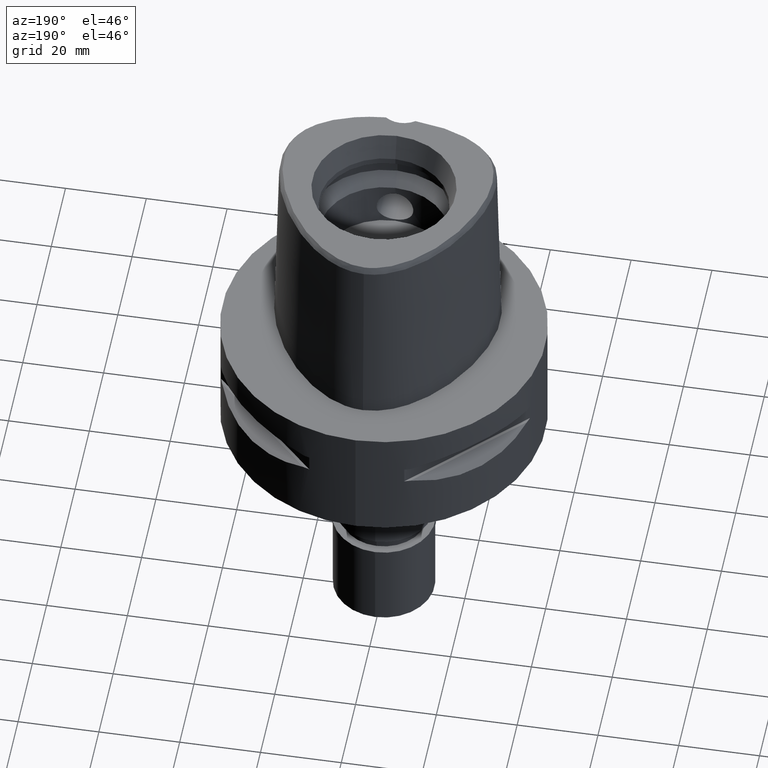
[diagram: clean part render]
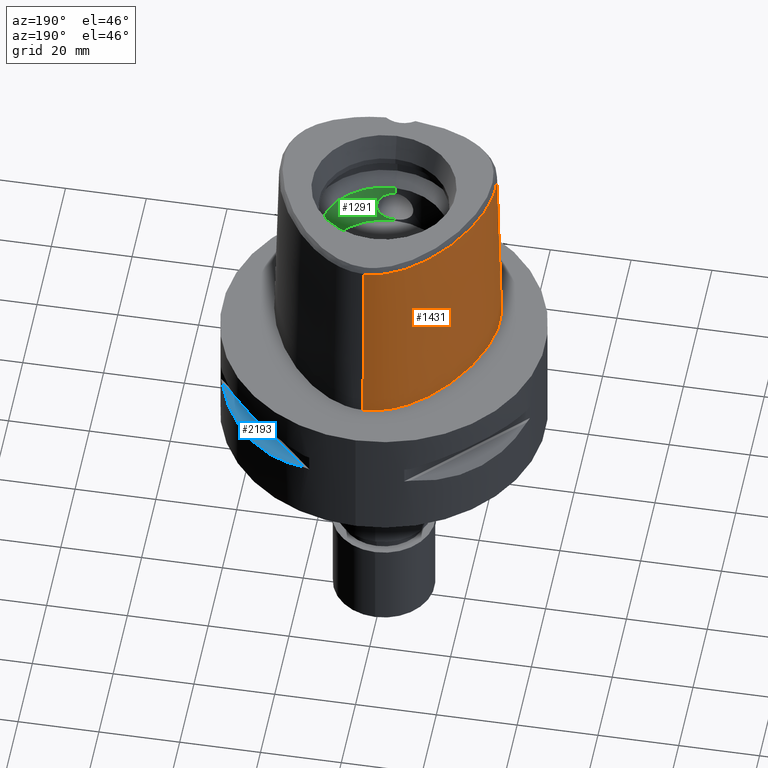
[diagram: same view with three faces highlighted in distinct colors, each labeled with its STEP entity id]
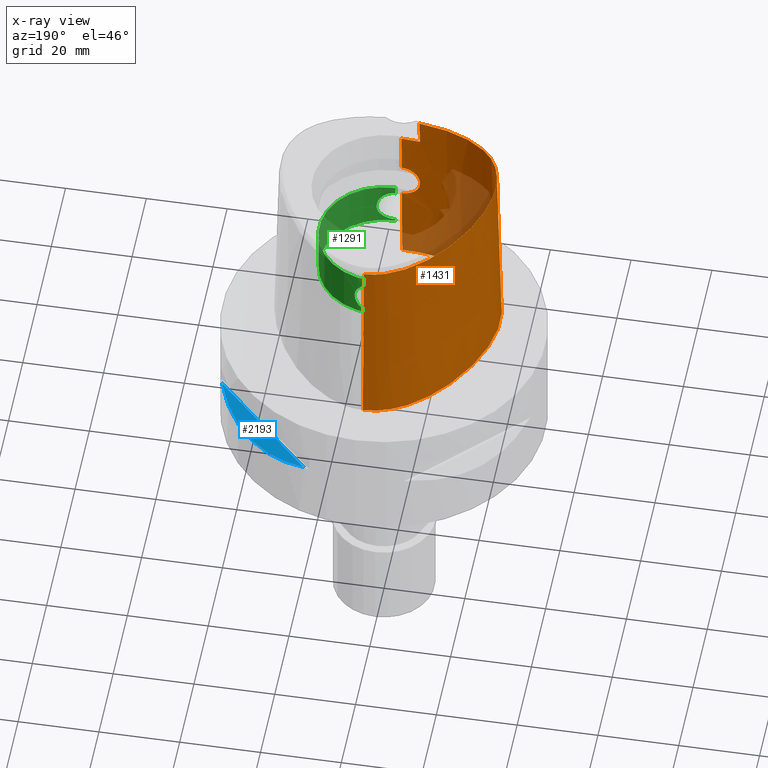
[diagram: x-ray of the same camera — body ghosted, the three highlighted faces saturated]
A machine part, auxiliary view with three faces highlighted in distinct colors.
The next image is the same camera in x-ray (body ghosted, the three faces saturated) — at least one of them is partly hidden behind the body in this view.
Their STEP definitions:

[orange] entity #1431 — the highlighted face is a freeform B-spline surface patch.
#24 = ORIENTED_EDGE ( 'NONE', *, *, #2084, .T. ) ;
#29 = CARTESIAN_POINT ( 'NONE',  ( -4.851582298131758220E-09, -24.66214466420117191, 36.51666702991057889 ) ) ;
#77 = CARTESIAN_POINT ( 'NONE',  ( 4.148743480276000060E-11, 29.57499999998999840, 1.087648489790999820E-13 ) ) ;
#100 = CARTESIAN_POINT ( 'NONE',  ( -1.150414049171941455, -24.82628098737377798, 29.40485804970646200 ) ) ;
#153 = CARTESIAN_POINT ( 'NONE',  ( -1.003044292485744782, -24.82866638025620887, 29.44055839642929229 ) ) ;
#161 = CARTESIAN_POINT ( 'NONE',  ( -3.149084863630656983, 29.34015620048747408, 2.014961992180194783E-06 ) ) ;
#170 = CARTESIAN_POINT ( 'NONE',  ( -24.60869384089000178, -14.20783601275000052, 47.45113843735000358 ) ) ;
#189 = CARTESIAN_POINT ( 'NONE',  ( -26.34453533281000048, -11.19579297594999900, 31.32395413184000432 ) ) ;
#204 = CARTESIAN_POINT ( 'NONE',  ( -23.43253025117558863, -17.76420406636658456, 2.014961992180194783E-06 ) ) ;
#213 = CARTESIAN_POINT ( 'NONE',  ( -23.44929528159000043, -17.78045351951999820, -0.9304144791637000145 ) ) ;
#220 = CARTESIAN_POINT ( 'NONE',  ( -1.979024681901999427, -25.01188081594396095, 20.90239184516331505 ) ) ;
#239 = CARTESIAN_POINT ( 'NONE',  ( -26.40443226301000124, 1.802817673319000225, 15.19676982634000062 ) ) ;
#242 = CARTESIAN_POINT ( 'NONE',  ( -4.098306025962062726, -24.82420565877259833, 23.01795395542337630 ) ) ;
#251 = EDGE_CURVE ( 'NONE', #1144, #2323, #3675, .T. ) ;
#260 = CARTESIAN_POINT ( 'NONE',  ( -26.01411826821999895, 1.699187959291000194, 31.32395413184000432 ) ) ;
#263 = CARTESIAN_POINT ( 'NONE',  ( -4.547910621292601263, -24.72974527037217385, 25.14250056300026159 ) ) ;
#283 = B_SPLINE_CURVE_WITH_KNOTS ( 'NONE', 3,
 ( #3488, #29, #2669, #3088 ),
 .UNSPECIFIED., .F., .F.,
 ( 4, 4 ),
 ( 0.0000000000000000000, 1.000000000000000000 ),
 .UNSPECIFIED. ) ;
#287 = CARTESIAN_POINT ( 'NONE',  ( -3.232655617673358073, -24.92130312931368863, 21.79804365392789123 ) ) ;
#301 = CARTESIAN_POINT ( 'NONE',  ( -26.38518529509154220, -1.941591755871272529, 46.52070903171002669 ) ) ;
#307 = CARTESIAN_POINT ( 'NONE',  ( 0.8462420188362000939, -25.18772735896000015, 15.19676982634000062 ) ) ;
#313 = CARTESIAN_POINT ( 'NONE',  ( -3.192130741524223048, -24.76262039752748123, 28.24235843700054360 ) ) ;
#328 = CARTESIAN_POINT ( 'NONE',  ( -2.334460938836000476, -24.41161097500999944, 47.45113843735000358 ) ) ;
#364 = CARTESIAN_POINT ( 'NONE',  ( -4.602965076336000827, -24.35127131300999892, 40.00000000000000000 ) ) ;
#381 = CARTESIAN_POINT ( 'NONE',  ( 0.8392169872731000124, -24.78463084255000126, 31.32395413184000432 ) ) ;
#409 = CARTESIAN_POINT ( 'NONE',  ( -3.083106526350761545, -24.50056604430708163, 40.00000010702063236 ) ) ;
#424 = CARTESIAN_POINT ( 'NONE',  ( -0.9629684636074632431, 28.41206041874429644, 46.52070903171004090 ) ) ;
#466 = LINE ( 'NONE', #4011, #754 ) ;
#513 = CARTESIAN_POINT ( 'NONE',  ( -6.271543170535000655, 28.37237220527000048, -0.9304144791637000145 ) ) ;
#539 = CARTESIAN_POINT ( 'NONE',  ( -26.77222809393993330, 1.900468737052474877, 2.014961992180194783E-06 ) ) ;
#550 = CARTESIAN_POINT ( 'NONE',  ( -27.16099298881999857, -1.823107492027999932, 15.19676982634000062 ) ) ;
#555 = CARTESIAN_POINT ( 'NONE',  ( -2.404910036719874356, -24.79321437770949288, 28.86288751850097967 ) ) ;
#575 = CARTESIAN_POINT ( 'NONE',  ( -27.47379251510000131, -5.347524336908000109, 15.19676982634000062 ) ) ;
#592 = EDGE_CURVE ( 'NONE', #2597, #1027, #466, .T. ) ;
#595 = CARTESIAN_POINT ( 'NONE',  ( -24.14246365506000203, -15.65707285677000016, 31.32395413184000432 ) ) ;
#600 = CARTESIAN_POINT ( 'NONE',  ( -2.349040166741095170, -24.99044712210595520, 21.10040994411975035 ) ) ;
#610 = CARTESIAN_POINT ( 'NONE',  ( -21.42129056303627621, -19.59889644408203324, 2.014961992180194783E-06 ) ) ;
#619 = CARTESIAN_POINT ( 'NONE',  ( -16.83227270592000124, 18.76477912998999642, 47.45113843735000358 ) ) ;
#626 = CARTESIAN_POINT ( 'NONE',  ( -4.201380620708012437, -24.72153596869751624, 26.74670933510338955 ) ) ;
#640 = CARTESIAN_POINT ( 'NONE',  ( -7.937300651754418901, -23.78071178103778749, 46.52070903171002669 ) ) ;
#645 = CARTESIAN_POINT ( 'NONE',  ( -17.14519266605000070, 19.02219896816000144, 31.32395413184000432 ) ) ;
#650 = CARTESIAN_POINT ( 'NONE',  ( -4.098396066241291713, -24.72479182399360909, 26.97739233806743542 ) ) ;
#667 = CARTESIAN_POINT ( 'NONE',  ( -6.639625076615000232, -24.86795321095000233, 15.19676982634000062 ) ) ;
#671 = CARTESIAN_POINT ( 'NONE',  ( -3.310528231614961570, -24.91386642802240203, 21.87824841565020861 ) ) ;
#682 = CARTESIAN_POINT ( 'NONE',  ( -11.74025984159122160, -24.13566401379715387, 2.014961992180194783E-06 ) ) ;
#684 = CARTESIAN_POINT ( 'NONE',  ( -22.59428085107498418, -16.95173346409981363, 46.52070903171002669 ) ) ;
#695 = CARTESIAN_POINT ( 'NONE',  ( -3.957281473797834348, -24.84276546235788530, 22.75305380327887050 ) ) ;
#718 = CARTESIAN_POINT ( 'NONE',  ( 0.8532670503992999533, -25.59082387535999814, -0.9304144791637000145 ) ) ;
#738 = CARTESIAN_POINT ( 'NONE',  ( -11.64093423981000086, -23.76831843706999692, 15.19676982634000062 ) ) ;
#744 = CARTESIAN_POINT ( 'NONE',  ( -1.165430911964724592, -25.05044697737377746, 20.55812161079716560 ) ) ;
#754 = VECTOR ( 'NONE', #2459, 1000.000000000000000 ) ;
#755 = B_SPLINE_SURFACE_WITH_KNOTS ( 'NONE', 3, 3, ( 
 ( #2482, #1988, #847, #2398 ),
 ( #2018, #3571, #1649, #3196 ),
 ( #2456, #1258, #2805, #4364 ),
 ( #3600, #4008, #4789, #1673 ),
 ( #513, #2961, #2517, #2108 ),
 ( #1370, #4503, #4840, #2156 ),
 ( #1750, #3330, #3279, #2489 ),
 ( #4037, #1410, #645, #619 ),
 ( #3350, #1342, #3752, #4452 ),
 ( #2893, #4920, #959, #1814 ),
 ( #3372, #239, #260, #2866 ),
 ( #4065, #550, #4426, #2584 ),
 ( #3657, #575, #4482, #1317 ),
 ( #2538, #4524, #1028, #2919 ),
 ( #2133, #3679, #189, #983 ),
 ( #933, #4086, #3302, #1006 ),
 ( #4135, #2203, #4107, #170 ),
 ( #1727, #4872, #595, #3703 ),
 ( #213, #1773, #2557, #4900 ),
 ( #1390, #2939, #1795, #2180 ),
 ( #3730, #1146, #4547, #3067 ),
 ( #4592, #2696, #3777, #4206 ),
 ( #4232, #738, #1943, #4258 ),
 ( #1077, #667, #767, #3092 ),
 ( #1462, #3851, #2623, #328 ),
 ( #3397, #3418, #4988, #3826 ),
 ( #718, #307, #381, #1889 ) ),
 .UNSPECIFIED., .F., .F., .F.,
 ( 4, 1, 1, 1, 1, 1, 1, 1, 1, 1, 1, 1, 1, 1, 1, 1, 1, 1, 1, 1, 1, 1, 1, 1, 4 ),
 ( 4, 4 ),
 ( -0.01204223939043000055, 0.0000000000000000000, 0.04166666666717999679, 0.08333333333381000296, 0.1250000000004000134, 0.1666666666671000052, 0.2500000000002999823, 0.3333333333335999904, 0.4166666666668999985, 0.4583333333335000148, 0.5000000000001000311, 0.5416666666667999674, 0.5833333333333999837, 0.6250000000000000000, 0.6458333333333000637, 0.6666666666667000474, 0.6875000000000000000, 0.7083333333333000637, 0.7499999999999000799, 0.7916666666666000163, 0.8333333333332000326, 0.8749999999998000488, 0.9166666666664999852, 1.000000000000000000, 1.008851807892999997 ),
 ( 5.285999461062999692E-09, 0.9999997304139999210 ),
 .UNSPECIFIED. ) ;
#767 = CARTESIAN_POINT ( 'NONE',  ( -6.584202216718000322, -24.46732447563000079, 31.32395413184000432 ) ) ;
#769 = EDGE_LOOP ( 'NONE', ( #1046, #3512, #1608, #968, #1948, #24, #1555, #1920 ) ) ;
#772 = B_SPLINE_CURVE_WITH_KNOTS ( 'NONE', 3,
 ( #1118, #2690, #640, #3747, #2198, #1808, #3366, #684, #1456, #2980, #4174, #3007, #1049, #2618, #301, #1859, #3413, #4981, #1480, #4329, #4692, #4780, #1617, #424, #2426 ),
 .UNSPECIFIED., .F., .F.,
 ( 4, 1, 1, 1, 1, 1, 1, 1, 1, 1, 1, 1, 1, 1, 1, 1, 1, 1, 1, 1, 1, 1, 4 ),
 ( 0.0000000000000000000, 0.03735859270279798944, 0.08111502030725915857, 0.1248714479116153908, 0.1686278755159716369, 0.2123843031204327991, 0.2561407307247890452, 0.2780189445269672377, 0.2998971583291452636, 0.3217753721314283721, 0.3436535859336065646, 0.3874100135379627829, 0.4311664411423190013, 0.4749228687467801913, 0.5186792963511364096, 0.5624357239554926835, 0.6499485791643100363, 0.7374614343731276112, 0.8249742895818399369, 0.8687307171863012378, 0.9124871447906469646, 0.9562435723950346578, 1.000000000000000000 ),
 .UNSPECIFIED. ) ;
#830 = CARTESIAN_POINT ( 'NONE',  ( -4.472216406693000579, -24.20008985674000357, 46.52070903171000538 ) ) ;
#847 = CARTESIAN_POINT ( 'NONE',  ( 0.8586475201287000480, 28.76398146757999896, 31.32395413184000432 ) ) ;
#902 = CARTESIAN_POINT ( 'NONE',  ( -9.304563380258132455, 26.79191401938954087, 2.014961992180194783E-06 ) ) ;
#916 = CARTESIAN_POINT ( 'NONE',  ( -1.733314166581076954, -24.81359117582309537, 29.20692116581587072 ) ) ;
#925 = FACE_OUTER_BOUND ( 'NONE', #769, .T. ) ;
#933 = CARTESIAN_POINT ( 'NONE',  ( -26.37046814545000117, -13.40391019821999841, -0.9304144791637000145 ) ) ;
#938 = CARTESIAN_POINT ( 'NONE',  ( -1.703896036124441515, -24.81434470502067668, 29.21892603896939278 ) ) ;
#959 = CARTESIAN_POINT ( 'NONE',  ( -24.48145224537000075, 6.531540503471999770, 31.32395413184000432 ) ) ;
#963 = CARTESIAN_POINT ( 'NONE',  ( -2.492689275651778225, -24.79011428768485459, 28.80645659143167947 ) ) ;
#968 = ORIENTED_EDGE ( 'NONE', *, *, #251, .T. ) ;
#983 = CARTESIAN_POINT ( 'NONE',  ( -25.95531695928000104, -11.08496013621000031, 47.45113843735000358 ) ) ;
#1006 = CARTESIAN_POINT ( 'NONE',  ( -25.26074793592000134, -12.91722051570000040, 47.45113843735000358 ) ) ;
#1010 = CARTESIAN_POINT ( 'NONE',  ( -4.494536868532352791, -24.72037511897800144, 25.72370608057386221 ) ) ;
#1027 = VERTEX_POINT ( 'NONE', #77 ) ;
#1028 = CARTESIAN_POINT ( 'NONE',  ( -26.90338677648000143, -8.653104855002998974, 31.32395413184000432 ) ) ;
#1032 = EDGE_CURVE ( 'NONE', #1589, #2323, #3308, .T. ) ;
#1036 = CARTESIAN_POINT ( 'NONE',  ( -3.864901861996108856, -24.85421915751040345, 22.59833191710549727 ) ) ;
#1046 = ORIENTED_EDGE ( 'NONE', *, *, #3676, .F. ) ;
#1049 = CARTESIAN_POINT ( 'NONE',  ( -26.52477687770812764, -8.605158286269302792, 46.52070903171002669 ) ) ;
#1060 = CARTESIAN_POINT ( 'NONE',  ( -3.613911253851773697, -24.88311648731248127, 22.23154152753995660 ) ) ;
#1077 = CARTESIAN_POINT ( 'NONE',  ( -6.695047936512000142, -25.26858194627000032, -0.9304144791637000145 ) ) ;
#1081 = CARTESIAN_POINT ( 'NONE',  ( -3.245740051672678206, -24.92006245179829449, 21.81130774429478336 ) ) ;
#1103 = CARTESIAN_POINT ( 'NONE',  ( -3.972636365745561449, -24.72937778087139193, 27.22257177644781478 ) ) ;
#1118 = CARTESIAN_POINT ( 'NONE',  ( -4.472216406693000579, -24.20008985674000357, 46.52070903171000538 ) ) ;
#1128 = CARTESIAN_POINT ( 'NONE',  ( -1.754298049354467315, -25.02308377135080164, 20.80178576367020682 ) ) ;
#1144 = VERTEX_POINT ( 'NONE', #2382 ) ;
#1146 = CARTESIAN_POINT ( 'NONE',  ( -18.36798846919000283, -21.11924012302000264, 15.19676982634000062 ) ) ;
#1206 = EDGE_CURVE ( 'NONE', #3664, #4263, #1866, .T. ) ;
#1207 = CARTESIAN_POINT ( 'NONE',  ( -1.748501813549788730, -25.02335543620021596, 20.79936485166494009 ) ) ;
#1258 = CARTESIAN_POINT ( 'NONE',  ( -0.7257524944418999313, 29.22811259546000073, 15.19676982634000062 ) ) ;
#1272 = CARTESIAN_POINT ( 'NONE',  ( -2.771982096821714592, -24.77983138410382580, 28.61121349796241731 ) ) ;
#1317 = CARTESIAN_POINT ( 'NONE',  ( -26.66520868318000126, -5.367805582592000135, 47.45113843735000358 ) ) ;
#1342 = CARTESIAN_POINT ( 'NONE',  ( -22.00846693019999734, 12.70659196786999878, 15.19676982634000062 ) ) ;
#1370 = CARTESIAN_POINT ( 'NONE',  ( -9.316733117297999911, 26.81182150644999851, -0.9304144791637000145 ) ) ;
#1373 = CARTESIAN_POINT ( 'NONE',  ( -2.520279592225537879, -24.78912363236073091, 28.78824203054452369 ) ) ;
#1384 = LINE ( 'NONE', #2151, #2418 ) ;
#1390 = CARTESIAN_POINT ( 'NONE',  ( -21.43542293252000164, -19.61750339137000054, -0.9304144791637000145 ) ) ;
#1393 = CARTESIAN_POINT ( 'NONE',  ( -1.791332517423406268, -25.02133236723707910, 20.81740716610699948 ) ) ;
#1410 = CARTESIAN_POINT ( 'NONE',  ( -17.45811262619000104, 19.27961880634000025, 15.19676982634000062 ) ) ;
#1414 = CARTESIAN_POINT ( 'NONE',  ( -4.140463633211604488, -24.72339410617371058, 26.88684090364281687 ) ) ;
#1424 = VERTEX_POINT ( 'NONE', #3982 ) ;
#1425 = CARTESIAN_POINT ( 'NONE',  ( -25.63812385488403933, -14.80217770914403275, 2.014961992180194783E-06 ) ) ;
#1431 = ADVANCED_FACE ( 'NONE', ( #925 ), #755, .T. ) ;
#1443 = CARTESIAN_POINT ( 'NONE',  ( -3.825895809632592570, -24.85889621362735724, 22.53711802513202755 ) ) ;
#1456 = CARTESIAN_POINT ( 'NONE',  ( -23.83579125613852057, -15.43164133759406198, 46.52070903171002669 ) ) ;
#1462 = CARTESIAN_POINT ( 'NONE',  ( -2.393548608051999871, -25.62160468843000061, -0.9304144791637000145 ) ) ;
#1469 = CARTESIAN_POINT ( 'NONE',  ( -4.156037652092050116, -24.81598364112166166, 23.14362525770355816 ) ) ;
#1480 = CARTESIAN_POINT ( 'NONE',  ( -16.85032607016520245, 18.77963051275411388, 46.52070903171002669 ) ) ;
#1490 = CARTESIAN_POINT ( 'NONE',  ( -3.896481458106406226, -24.85034248778503141, 22.65020889969156315 ) ) ;
#1555 = ORIENTED_EDGE ( 'NONE', *, *, #592, .T. ) ;
#1589 = VERTEX_POINT ( 'NONE', #1965 ) ;
#1608 = ORIENTED_EDGE ( 'NONE', *, *, #4642, .F. ) ;
#1617 = CARTESIAN_POINT ( 'NONE',  ( -2.897876354792142006, 28.19692242654550540, 46.52070903171002669 ) ) ;
#1649 = CARTESIAN_POINT ( 'NONE',  ( 0.5727458549792000531, 28.78269979260000255, 31.32395413184000432 ) ) ;
#1658 = CARTESIAN_POINT ( 'NONE',  ( -0.2769662722952262457, -24.83629963748000335, 29.55000000000000071 ) ) ;
#1673 = CARTESIAN_POINT ( 'NONE',  ( -2.892852102171000084, 28.17405737592999770, 47.45113843735000358 ) ) ;
#1727 = CARTESIAN_POINT ( 'NONE',  ( -24.79336081454000151, -16.13554022456000325, -0.9304144791637000145 ) ) ;
#1731 = CARTESIAN_POINT ( 'NONE',  ( -3.029613744918178586, -24.76954858878827537, 28.39612668127830730 ) ) ;
#1750 = CARTESIAN_POINT ( 'NONE',  ( -13.23332856296999971, 24.06149249908999721, -0.9304144791637000145 ) ) ;
#1754 = CARTESIAN_POINT ( 'NONE',  ( -1.611811031576410480, -24.81663505490544708, 29.25526689574348893 ) ) ;
#1773 = CARTESIAN_POINT ( 'NONE',  ( -23.15870205039999874, -17.49879694150000020, 15.19676982634000062 ) ) ;
#1776 = CARTESIAN_POINT ( 'NONE',  ( -2.978031838722649649, -24.94531787462533856, 21.54303487591531763 ) ) ;
#1795 = CARTESIAN_POINT ( 'NONE',  ( -20.94550185142999865, -18.97246394899999800, 31.32395413184000432 ) ) ;
#1798 = CARTESIAN_POINT ( 'NONE',  ( -3.808704889424058493, -24.86093372512833355, 22.51074749453148982 ) ) ;
#1808 = CARTESIAN_POINT ( 'NONE',  ( -17.99241701170932117, -20.42933791836953361, 46.52070903171002669 ) ) ;
#1814 = CARTESIAN_POINT ( 'NONE',  ( -24.10679983710999608, 6.379205539913000322, 47.45113843735000358 ) ) ;
#1819 = CARTESIAN_POINT ( 'NONE',  ( -4.536359085940563141, -24.72544551544397962, 25.35955479186922545 ) ) ;
#1847 = CARTESIAN_POINT ( 'NONE',  ( -3.227056402119919731, -24.92183285210592203, 21.79239637393084550 ) ) ;
#1859 = CARTESIAN_POINT ( 'NONE',  ( -25.64632274977763871, 1.601536978524053856, 46.52070903171002669 ) ) ;
#1866 = B_SPLINE_CURVE_WITH_KNOTS ( 'NONE', 3,
 ( #2849, #1658, #2445, #153, #100, #4431, #4825, #1754, #3306, #938, #4410, #916, #2467, #3996, #2493, #4879, #3206, #555, #4019, #963, #4381, #1373, #4770, #1272, #2112, #1731, #2922, #3757, #313, #2942, #3376, #3354, #3403, #4970, #1103, #4139, #650, #1414, #1873, #3423, #2258, #2208, #626, #3018, #4506, #1010, #4573, #1819, #2561, #263, #4923, #4114, #4947, #4527, #4597, #4552, #2607, #4992, #2184, #3734, #3810, #3708, #2965, #1469, #242, #3781, #695, #1490, #1036, #1443, #1798, #2587, #3044, #2996, #1060, #4089, #4161, #671, #2230, #1081, #287, #1847, #1776, #4184, #600, #2628, #2161, #220, #3333, #4903, #1393, #3474, #1128, #1207, #744, #3177, #4237 ),
 .UNSPECIFIED., .F., .F.,
 ( 4, 2, 2, 1, 1, 1, 2, 2, 2, 2, 1, 1, 2, 2, 2, 1, 1, 1, 2, 2, 2, 2, 2, 1, 1, 2, 2, 2, 2, 1, 2, 2, 2, 2, 1, 1, 1, 2, 2, 2, 2, 1, 1, 2, 2, 2, 1, 1, 1, 2, 2, 2, 2, 2, 1, 1, 2, 2, 4 ),
 ( 0.0000000000000000000, 0.06250000000001192102, 0.09375000000001777745, 0.1093750000000207195, 0.1171875000000222045, 0.1210937500000230510, 0.1230468750000233563, 0.1250000000000236478, 0.1562500000000250633, 0.1718750000000257849, 0.1796875000000261735, 0.1835937500000265343, 0.1855468750000266731, 0.1875000000000268119, 0.2187500000000350830, 0.2343750000000392186, 0.2421875000000409672, 0.2460937500000421330, 0.2480468750000424383, 0.2500000000000426881, 0.3125000000000381917, 0.3437500000000361933, 0.3593750000000351941, 0.3671875000000346945, 0.3710937500000348610, 0.3730468750000349720, 0.3750000000000350275, 0.4375000000000439093, 0.4687500000000480171, 0.4843750000000504041, 0.4921875000000512368, 0.5000000000000520695, 0.5625000000000602851, 0.5937500000000645040, 0.6093750000000666134, 0.6171875000000676126, 0.6210937500000685008, 0.6230468750000688338, 0.6250000000000692779, 0.6562500000000668354, 0.6718750000000657252, 0.6796875000000649480, 0.6835937500000641709, 0.6855468750000638378, 0.6875000000000633937, 0.7187500000000578426, 0.7343750000000550671, 0.7421875000000536238, 0.7460937500000532907, 0.7480468750000527356, 0.7500000000000521805, 0.8125000000000374145, 0.8437500000000298650, 0.8593750000000258682, 0.8671875000000239808, 0.8710937500000229816, 0.8730468750000224265, 0.8750000000000218714, 1.000000000000000000 ),
 .UNSPECIFIED. ) ;
#1873 = CARTESIAN_POINT ( 'NONE',  ( -4.160790905028416198, -24.72274124955080410, 26.84178595757741803 ) ) ;
#1889 = CARTESIAN_POINT ( 'NONE',  ( 0.8321919557100000420, -24.38153432614999971, 47.45113843735000358 ) ) ;
#1920 = ORIENTED_EDGE ( 'NONE', *, *, #2830, .T. ) ;
#1943 = CARTESIAN_POINT ( 'NONE',  ( -11.53552746475000035, -23.37848226315000133, 31.32395413184000432 ) ) ;
#1948 = ORIENTED_EDGE ( 'NONE', *, *, #1032, .F. ) ;
#1965 = CARTESIAN_POINT ( 'NONE',  ( -4.472216406693000579, -24.20008985674000357, 46.52070903171000538 ) ) ;
#1988 = CARTESIAN_POINT ( 'NONE',  ( 0.8850788443557999763, 29.16624661380999939, 15.19676982634000062 ) ) ;
#2018 = CARTESIAN_POINT ( 'NONE',  ( 0.6077626423787999554, 29.58843421373000027, -0.9304144791637000145 ) ) ;
#2026 = B_SPLINE_CURVE_WITH_KNOTS ( 'NONE', 3,
 ( #3248, #4394, #161, #4418, #902, #2455, #4813, #2481, #4029, #539, #3696, #2931, #2615, #3388, #4171, #1425, #2598, #204, #610, #3722, #2950, #682, #2240, #4959, #4582 ),
 .UNSPECIFIED., .F., .F.,
 ( 4, 1, 1, 1, 1, 1, 1, 1, 1, 1, 1, 1, 1, 1, 1, 1, 1, 1, 1, 1, 1, 1, 4 ),
 ( 0.0000000000000000000, 0.04166666666717999679, 0.08333333333381000296, 0.1250000000004000134, 0.1666666666671000052, 0.2500000000002999823, 0.3333333333335999904, 0.4166666666668999985, 0.4583333333335000148, 0.5000000000001000311, 0.5416666666667999674, 0.5833333333333999837, 0.6250000000000000000, 0.6458333333333000637, 0.6666666666667000474, 0.6875000000000000000, 0.7083333333333000637, 0.7499999999999000799, 0.7916666666666000163, 0.8333333333332000326, 0.8749999999998000488, 0.9166666666664999852, 1.000000000000000000 ),
 .UNSPECIFIED. ) ;
#2084 = EDGE_CURVE ( 'NONE', #1589, #2597, #772, .T. ) ;
#2108 = CARTESIAN_POINT ( 'NONE',  ( -5.801139431891999543, 27.25218159355999958, 47.45113843735000358 ) ) ;
#2112 = CARTESIAN_POINT ( 'NONE',  ( -2.944900302942494719, -24.77298581947536960, 28.46923970402316328 ) ) ;
#2133 = CARTESIAN_POINT ( 'NONE',  ( -27.12297207986999936, -11.41745865541999905, -0.9304144791637000145 ) ) ;
#2151 = CARTESIAN_POINT ( 'NONE',  ( -2.263615543289000344E-12, -25.06378435148999984, 20.44999999999999929 ) ) ;
#2154 = CARTESIAN_POINT ( 'NONE',  ( -4.602965076336000827, -24.35127131300999892, 40.00000000000000000 ) ) ;
#2156 = CARTESIAN_POINT ( 'NONE',  ( -8.683908161710000684, 25.77663442117000159, 47.45113843735000358 ) ) ;
#2161 = CARTESIAN_POINT ( 'NONE',  ( -2.039991806422710496, -25.00858519317930728, 20.93235562228154834 ) ) ;
#2180 = CARTESIAN_POINT ( 'NONE',  ( -20.70054131088000204, -18.64994422780999983, 47.45113843735000358 ) ) ;
#2184 = CARTESIAN_POINT ( 'NONE',  ( -4.256460948041315362, -24.80084657812260218, 23.39133378591558809 ) ) ;
#2198 = CARTESIAN_POINT ( 'NONE',  ( -14.87405714084825981, -21.87944447072719711, 46.52070903171002669 ) ) ;
#2203 = CARTESIAN_POINT ( 'NONE',  ( -25.30843714809000033, -14.61183299999999896, 15.19676982634000062 ) ) ;
#2208 = CARTESIAN_POINT ( 'NONE',  ( -4.198926685529635883, -24.72160612811943636, 26.75259212959136690 ) ) ;
#2230 = CARTESIAN_POINT ( 'NONE',  ( -3.265305598819550514, -24.91820214815111356, 21.83126415608266768 ) ) ;
#2240 = CARTESIAN_POINT ( 'NONE',  ( -6.691850456900859001, -25.24546869994623677, 2.014961992180194783E-06 ) ) ;
#2258 = CARTESIAN_POINT ( 'NONE',  ( -4.192714366872899667, -24.72178541175452793, 26.76740225217013602 ) ) ;
#2323 = VERTEX_POINT ( 'NONE', #2154 ) ;
#2382 = CARTESIAN_POINT ( 'NONE',  ( -1.451045074373000022E-08, -24.57504746727000011, 40.00000005214000254 ) ) ;
#2398 = CARTESIAN_POINT ( 'NONE',  ( 0.8322161959015998978, 28.36171632135000209, 47.45113843735000358 ) ) ;
#2418 = VECTOR ( 'NONE', #2511, 1000.000000000000000 ) ;
#2426 = CARTESIAN_POINT ( 'NONE',  ( -1.216549064271000200E-11, 28.41206021534999593, 46.52071719450999154 ) ) ;
#2445 = CARTESIAN_POINT ( 'NONE',  ( -0.5644801122057820919, -24.83439132317404940, 29.52465347867346424 ) ) ;
#2455 = CARTESIAN_POINT ( 'NONE',  ( -13.21796077217788579, 24.04386714933609426, 2.014961992180194783E-06 ) ) ;
#2456 = CARTESIAN_POINT ( 'NONE',  ( -0.7475778414334000033, 29.63225228734000183, -0.9304144791637000145 ) ) ;
#2459 = DIRECTION ( 'NONE',  ( 1.152952324191030062E-12, 0.02499051293969065113, -0.9996876883622259902 ) ) ;
#2467 = CARTESIAN_POINT ( 'NONE',  ( -1.858668925427581442, -24.81033890557744925, 29.15501574767904103 ) ) ;
#2481 = CARTESIAN_POINT ( 'NONE',  ( -22.33885461387360394, 12.89734372470928747, 2.014961992180194783E-06 ) ) ;
#2482 = CARTESIAN_POINT ( 'NONE',  ( 0.9115101685829000155, 29.56851176004000337, -0.9304144791637000145 ) ) ;
#2489 = CARTESIAN_POINT ( 'NONE',  ( -12.43420517240999956, 23.14497629675000212, 47.45113843735000358 ) ) ;
#2493 = CARTESIAN_POINT ( 'NONE',  ( -2.182391158247872998, -24.80062287573412405, 28.99314679185932420 ) ) ;
#2511 = DIRECTION ( 'NONE',  ( -7.796119275332742984E-13, -0.02499051295403921166, -0.9996876883618673881 ) ) ;
#2517 = CARTESIAN_POINT ( 'NONE',  ( -5.957940678107000565, 27.62557846413000107, 31.32395413184000432 ) ) ;
#2538 = CARTESIAN_POINT ( 'NONE',  ( -27.70696775908000120, -8.754869100840998897, -0.9304144791637000145 ) ) ;
#2557 = CARTESIAN_POINT ( 'NONE',  ( -22.86810881919999616, -17.21714036348000221, 31.32395413184000432 ) ) ;
#2561 = CARTESIAN_POINT ( 'NONE',  ( -4.544092989177465292, -24.72741046393034026, 25.25074796833677482 ) ) ;
#2584 = CARTESIAN_POINT ( 'NONE',  ( -26.36214112153999878, -1.945111148578000160, 47.45113843735000358 ) ) ;
#2587 = CARTESIAN_POINT ( 'NONE',  ( -3.797137772289173707, -24.86229941254662990, 22.49313827486261630 ) ) ;
#2597 = VERTEX_POINT ( 'NONE', #3668 ) ;
#2598 = CARTESIAN_POINT ( 'NONE',  ( -24.77458489427743515, -16.12173825136776628, 2.014961992180194783E-06 ) ) ;
#2607 = CARTESIAN_POINT ( 'NONE',  ( -4.340344041599787595, -24.78724112967249127, 23.63256450709621959 ) ) ;
#2615 = CARTESIAN_POINT ( 'NONE',  ( -27.68378748822759050, -8.751933587392207059, 2.014961992180194783E-06 ) ) ;
#2618 = CARTESIAN_POINT ( 'NONE',  ( -26.68853359098447342, -5.367220537273179382, 46.52070903171002669 ) ) ;
#2623 = CARTESIAN_POINT ( 'NONE',  ( -2.354156828574999860, -24.81494221281999657, 31.32395413184000432 ) ) ;
#2628 = CARTESIAN_POINT ( 'NONE',  ( -2.224291573385093645, -24.99814500580199805, 21.02832322412896815 ) ) ;
#2669 = CARTESIAN_POINT ( 'NONE',  ( -4.860377536725454092E-09, -24.74922215084313848, 33.03333351495532355 ) ) ;
#2690 = CARTESIAN_POINT ( 'NONE',  ( -5.572548441001536013, -24.09475885057244682, 46.52070903171002669 ) ) ;
#2696 = CARTESIAN_POINT ( 'NONE',  ( -15.15935282126000061, -22.61055604351000170, 15.19676982634000062 ) ) ;
#2805 = CARTESIAN_POINT ( 'NONE',  ( -0.7039271474503999704, 28.82397290356999875, 31.32395413184000432 ) ) ;
#2830 = EDGE_CURVE ( 'NONE', #1027, #1424, #2026, .T. ) ;
#2849 = CARTESIAN_POINT ( 'NONE',  ( 1.351075727145000046E-14, -24.83629963747999980, 29.55000000000000071 ) ) ;
#2866 = CARTESIAN_POINT ( 'NONE',  ( -25.62380427344000111, 1.595558245262000074, 47.45113843735000358 ) ) ;
#2893 = CARTESIAN_POINT ( 'NONE',  ( -25.23075706188000211, 6.836210430589999554, -0.9304144791637000145 ) ) ;
#2919 = CARTESIAN_POINT ( 'NONE',  ( -26.50159628517999977, -8.602222732083998125, 47.45113843735000358 ) ) ;
#2922 = CARTESIAN_POINT ( 'NONE',  ( -3.125212091966392158, -24.76551320166747061, 28.30726214217402514 ) ) ;
#2931 = CARTESIAN_POINT ( 'NONE',  ( -27.85475984693389861, -5.337968751267125000, 2.014961992180194783E-06 ) ) ;
#2939 = CARTESIAN_POINT ( 'NONE',  ( -21.19046239197000148, -19.29498367017999882, 15.19676982634000062 ) ) ;
#2942 = CARTESIAN_POINT ( 'NONE',  ( -3.205390121191532327, -24.76204090357538590, 28.22925085367182163 ) ) ;
#2950 = CARTESIAN_POINT ( 'NONE',  ( -15.29776364450867376, -22.96525385922200257, 2.014961992180194783E-06 ) ) ;
#2961 = CARTESIAN_POINT ( 'NONE',  ( -6.114741924320999722, 27.99897533469999900, 15.19676982634000062 ) ) ;
#2965 = CARTESIAN_POINT ( 'NONE',  ( -4.207829589086125033, -24.80824686016802261, 23.26889234074825552 ) ) ;
#2980 = CARTESIAN_POINT ( 'NONE',  ( -24.62887906780516190, -14.21948995895652956, 46.52070903171002669 ) ) ;
#2996 = CARTESIAN_POINT ( 'NONE',  ( -3.702709904148361097, -24.87336589807969744, 22.35148037005134825 ) ) ;
#3007 = CARTESIAN_POINT ( 'NONE',  ( -25.97777222568531030, -11.09135444108374458, 46.52070903171002669 ) ) ;
#3018 = CARTESIAN_POINT ( 'NONE',  ( -4.322680882349037468, -24.71812462909619157, 26.45319451590574289 ) ) ;
#3044 = CARTESIAN_POINT ( 'NONE',  ( -3.790579096131128534, -24.86307050843589650, 22.48323682071581331 ) ) ;
#3067 = CARTESIAN_POINT ( 'NONE',  ( -17.98126123958000022, -20.40884543515999994, 47.45113843735000358 ) ) ;
#3088 = CARTESIAN_POINT ( 'NONE',  ( 1.351075727145000046E-14, -24.83629963747999980, 29.55000000000000071 ) ) ;
#3092 = CARTESIAN_POINT ( 'NONE',  ( -6.528779356822000501, -24.06669574030999925, 47.45113843735000358 ) ) ;
#3165 = CARTESIAN_POINT ( 'NONE',  ( -2.263615543289000344E-12, -25.06378435148999984, 20.44999999999999929 ) ) ;
#3177 = CARTESIAN_POINT ( 'NONE',  ( -0.5686770761324506651, -25.06378435148999273, 20.44999999999999929 ) ) ;
#3196 = CARTESIAN_POINT ( 'NONE',  ( 0.5552374612792999597, 28.37983258203999881, 47.45113843735000358 ) ) ;
#3206 = CARTESIAN_POINT ( 'NONE',  ( -2.352923008985153164, -24.79499099983798160, 28.89459205334688008 ) ) ;
#3223 = CARTESIAN_POINT ( 'NONE',  ( 1.351075727145000046E-14, -24.83629963747999980, 29.55000000000000071 ) ) ;
#3248 = CARTESIAN_POINT ( 'NONE',  ( 4.148743480276000060E-11, 29.57499999998999840, 1.087648489790999820E-13 ) ) ;
#3279 = CARTESIAN_POINT ( 'NONE',  ( -12.70057963592999961, 23.45048169753000167, 31.32395413184000432 ) ) ;
#3302 = CARTESIAN_POINT ( 'NONE',  ( -25.63065467243000128, -13.07945040987999974, 31.32395413184000432 ) ) ;
#3306 = CARTESIAN_POINT ( 'NONE',  ( -1.676286854294903650, -24.81504355059169242, 29.23004141242414633 ) ) ;
#3308 = B_SPLINE_CURVE_WITH_KNOTS ( 'NONE', 3,
 ( #830, #3887, #3910, #364 ),
 .UNSPECIFIED., .F., .F.,
 ( 4, 4 ),
 ( 0.0000000000000000000, 1.000000000000000000 ),
 .UNSPECIFIED. ) ;
#3330 = CARTESIAN_POINT ( 'NONE',  ( -12.96695409944999966, 23.75598709830999766, 15.19676982634000062 ) ) ;
#3333 = CARTESIAN_POINT ( 'NONE',  ( -1.888484788633898681, -25.01654759054924426, 20.86028587658051592 ) ) ;
#3350 = CARTESIAN_POINT ( 'NONE',  ( -22.35908247772999857, 12.90902243054000031, -0.9304144791637000145 ) ) ;
#3354 = CARTESIAN_POINT ( 'NONE',  ( -3.459328791567058747, -24.75086403572738547, 27.97515479135451244 ) ) ;
#3366 = CARTESIAN_POINT ( 'NONE',  ( -20.71467387648050362, -18.66855143330905875, 46.52070903171002669 ) ) ;
#3372 = CARTESIAN_POINT ( 'NONE',  ( -26.79474625778999908, 1.906447387348000122, -0.9304144791637000145 ) ) ;
#3376 = CARTESIAN_POINT ( 'NONE',  ( -3.211065830875715399, -24.76179211193617746, 28.22361125334814957 ) ) ;
#3388 = CARTESIAN_POINT ( 'NONE',  ( -27.10051712507509691, -11.41106443927964520, 2.014961992180194783E-06 ) ) ;
#3397 = CARTESIAN_POINT ( 'NONE',  ( 0.5689259951232999990, -25.59577895916000045, -0.9304144791637000145 ) ) ;
#3403 = CARTESIAN_POINT ( 'NONE',  ( -3.657706900519462678, -24.74222987759012327, 27.72260022703281024 ) ) ;
#3413 = CARTESIAN_POINT ( 'NONE',  ( -24.12841474588360668, 6.387994236496195022, 46.52070903171002669 ) ) ;
#3418 = CARTESIAN_POINT ( 'NONE',  ( 0.5642418783911999913, -25.19264542561000297, 15.19676982634000062 ) ) ;
#3423 = CARTESIAN_POINT ( 'NONE',  ( -4.183313010704268642, -24.72206008749305894, 26.78965014441781278 ) ) ;
#3474 = CARTESIAN_POINT ( 'NONE',  ( -1.769098408929653976, -25.02238666794956856, 20.80800104489353686 ) ) ;
#3488 = CARTESIAN_POINT ( 'NONE',  ( -1.451045074373000022E-08, -24.57504746727000011, 40.00000005214000254 ) ) ;
#3512 = ORIENTED_EDGE ( 'NONE', *, *, #1206, .F. ) ;
#3571 = CARTESIAN_POINT ( 'NONE',  ( 0.5902542486790000043, 29.18556700315999919, 15.19676982634000062 ) ) ;
#3600 = CARTESIAN_POINT ( 'NONE',  ( -3.154109046518000170, 29.36302093381000233, -0.9304144791637000145 ) ) ;
#3657 = CARTESIAN_POINT ( 'NONE',  ( -27.87808443105999601, -5.337383714067000184, -0.9304144791637000145 ) ) ;
#3664 = VERTEX_POINT ( 'NONE', #3223 ) ;
#3668 = CARTESIAN_POINT ( 'NONE',  ( -1.216549064271000200E-11, 28.41206021534999593, 46.52071719450999154 ) ) ;
#3675 = B_SPLINE_CURVE_WITH_KNOTS ( 'NONE', 3,
 ( #4287, #3902, #409, #5040 ),
 .UNSPECIFIED., .F., .F.,
 ( 4, 4 ),
 ( 0.0000000000000000000, 1.000000000000000000 ),
 .UNSPECIFIED. ) ;
#3676 = EDGE_CURVE ( 'NONE', #4263, #1424, #1384, .T. ) ;
#3679 = CARTESIAN_POINT ( 'NONE',  ( -26.73375370634000348, -11.30662581568000036, 15.19676982634000062 ) ) ;
#3696 = CARTESIAN_POINT ( 'NONE',  ( -27.53737506870053053, -1.765625007621322684, 2.014961992180194783E-06 ) ) ;
#3703 = CARTESIAN_POINT ( 'NONE',  ( -23.81701507532000051, -15.41783917286999817, 47.45113843735000358 ) ) ;
#3708 = CARTESIAN_POINT ( 'NONE',  ( -4.212409792926640861, -24.80756021599265537, 23.28005703556031847 ) ) ;
#3722 = CARTESIAN_POINT ( 'NONE',  ( -18.55019646666923094, -21.45394526812287594, 2.014961992180194783E-06 ) ) ;
#3730 = CARTESIAN_POINT ( 'NONE',  ( -18.56135208398999836, -21.47443746695999778, -0.9304144791637000145 ) ) ;
#3734 = CARTESIAN_POINT ( 'NONE',  ( -4.231109674115415054, -24.80473516988229221, 23.32640847146424079 ) ) ;
#3747 = CARTESIAN_POINT ( 'NONE',  ( -11.43620194735803075, -23.01113699852787065, 46.52070903171002669 ) ) ;
#3752 = CARTESIAN_POINT ( 'NONE',  ( -21.65785138266999965, 12.50416150519999903, 31.32395413184000432 ) ) ;
#3757 = CARTESIAN_POINT ( 'NONE',  ( -3.172181247291613548, -24.76348918694394285, 28.26195868750489026 ) ) ;
#3777 = CARTESIAN_POINT ( 'NONE',  ( -15.01246784649999988, -22.23414198508000084, 31.32395413184000432 ) ) ;
#3781 = CARTESIAN_POINT ( 'NONE',  ( -3.994669282579146774, -24.83794919743794338, 22.82040209576782175 ) ) ;
#3810 = CARTESIAN_POINT ( 'NONE',  ( -4.219931661120546629, -24.80642684597903269, 23.29859562715319754 ) ) ;
#3826 = CARTESIAN_POINT ( 'NONE',  ( 0.5548736449269000559, -24.38637835850000002, 47.45113843735000358 ) ) ;
#3851 = CARTESIAN_POINT ( 'NONE',  ( -2.373852718313000043, -25.21827345062000347, 15.19676982634000062 ) ) ;
#3887 = CARTESIAN_POINT ( 'NONE',  ( -4.516620047288355977, -24.24973673731960844, 44.34713935447333455 ) ) ;
#3902 = CARTESIAN_POINT ( 'NONE',  ( -1.541632273122020447, -24.57506718850450866, 40.00000010702062525 ) ) ;
#3910 = CARTESIAN_POINT ( 'NONE',  ( -4.560196949595972882, -24.30012304335829398, 42.17356967723666372 ) ) ;
#3982 = CARTESIAN_POINT ( 'NONE',  ( -1.821166022130000062E-11, -25.57499999999999929, 1.152041425219000027E-13 ) ) ;
#3996 = CARTESIAN_POINT ( 'NONE',  ( -1.984502176478918578, -24.80676203802991608, 29.09712838306175087 ) ) ;
#4008 = CARTESIAN_POINT ( 'NONE',  ( -3.067023398402000112, 28.96669974785000079, 15.19676982634000062 ) ) ;
#4011 = CARTESIAN_POINT ( 'NONE',  ( -1.216549064271000200E-11, 28.41206021534999593, 46.52071719450999154 ) ) ;
#4019 = CARTESIAN_POINT ( 'NONE',  ( -2.466259342606088811, -24.79105701084886348, 28.82372012011443374 ) ) ;
#4029 = CARTESIAN_POINT ( 'NONE',  ( -25.20914245305520751, 6.827421855967028108, 2.014961992180194783E-06 ) ) ;
#4037 = CARTESIAN_POINT ( 'NONE',  ( -17.77103258632999783, 19.53703864451000172, -0.9304144791637000145 ) ) ;
#4065 = CARTESIAN_POINT ( 'NONE',  ( -27.56041892247000291, -1.762105663753000151, -0.9304144791637000145 ) ) ;
#4086 = CARTESIAN_POINT ( 'NONE',  ( -26.00056140894000123, -13.24168030404999996, 15.19676982634000062 ) ) ;
#4089 = CARTESIAN_POINT ( 'NONE',  ( -3.472208232089673441, -24.89783358727838092, 22.05860165752379487 ) ) ;
#4107 = CARTESIAN_POINT ( 'NONE',  ( -24.95856549448999928, -14.40983450637000018, 31.32395413184000432 ) ) ;
#4114 = CARTESIAN_POINT ( 'NONE',  ( -4.550009659928395678, -24.73228693208369933, 25.03285394944881048 ) ) ;
#4135 = CARTESIAN_POINT ( 'NONE',  ( -25.65830880169000139, -14.81383149363000129, -0.9304144791637000145 ) ) ;
#4139 = CARTESIAN_POINT ( 'NONE',  ( -4.068466760397990711, -24.72584630863897459, 27.03834969240150699 ) ) ;
#4161 = CARTESIAN_POINT ( 'NONE',  ( -3.399231802462701513, -24.90521494129050950, 21.97387284700376853 ) ) ;
#4171 = CARTESIAN_POINT ( 'NONE',  ( -26.34912732597294038, -13.39455076097933173, 2.014961992180194783E-06 ) ) ;
#4174 = CARTESIAN_POINT ( 'NONE',  ( -25.28208905154646757, -12.92658008282339566, 46.52070903171002669 ) ) ;
#4184 = CARTESIAN_POINT ( 'NONE',  ( -2.724936705861476849, -24.96514019468437695, 21.34399272640474621 ) ) ;
#4206 = CARTESIAN_POINT ( 'NONE',  ( -14.86558287174000093, -21.85772792666000086, 47.45113843735000358 ) ) ;
#4232 = CARTESIAN_POINT ( 'NONE',  ( -11.74634101485999871, -24.15815461099999695, -0.9304144791637000145 ) ) ;
#4237 = CARTESIAN_POINT ( 'NONE',  ( -2.263615543289000344E-12, -25.06378435148999984, 20.44999999999999929 ) ) ;
#4258 = CARTESIAN_POINT ( 'NONE',  ( -11.43012068969999895, -22.98864608922000130, 47.45113843735000358 ) ) ;
#4263 = VERTEX_POINT ( 'NONE', #3165 ) ;
#4287 = CARTESIAN_POINT ( 'NONE',  ( -1.451045074373000022E-08, -24.57504746727000011, 40.00000005214000254 ) ) ;
#4329 = CARTESIAN_POINT ( 'NONE',  ( -12.44957317646300154, 23.16260189109323875, 46.52070903171002669 ) ) ;
#4364 = CARTESIAN_POINT ( 'NONE',  ( -0.6821018004587999783, 28.41983321169000121, 47.45113843735000358 ) ) ;
#4381 = CARTESIAN_POINT ( 'NONE',  ( -2.510338385226315694, -24.78948177504959816, 28.79484028637074289 ) ) ;
#4394 = CARTESIAN_POINT ( 'NONE',  ( -1.049694954400299141, 29.57499994963289680, 2.014961992180194783E-06 ) ) ;
#4410 = CARTESIAN_POINT ( 'NONE',  ( -1.722296434335159665, -24.81387508079692950, 29.21144792399133649 ) ) ;
#4418 = CARTESIAN_POINT ( 'NONE',  ( -6.262496925200830233, 28.35083003146879577, 2.014961992180194783E-06 ) ) ;
#4426 = CARTESIAN_POINT ( 'NONE',  ( -26.76156705517999868, -1.884109320302999935, 31.32395413184000432 ) ) ;
#4431 = CARTESIAN_POINT ( 'NONE',  ( -1.371865276104786258, -24.82198728018540734, 29.33894196721586312 ) ) ;
#4452 = CARTESIAN_POINT ( 'NONE',  ( -21.30723583513999841, 12.30173104253999838, 47.45113843735000358 ) ) ;
#4482 = CARTESIAN_POINT ( 'NONE',  ( -27.06950059913999951, -5.357664959750001010, 31.32395413184000432 ) ) ;
#4503 = CARTESIAN_POINT ( 'NONE',  ( -9.105791465434998955, 26.46675914469000190, 15.19676982634000062 ) ) ;
#4506 = CARTESIAN_POINT ( 'NONE',  ( -4.409270466778649755, -24.71744676443888267, 26.16158622814597834 ) ) ;
#4524 = CARTESIAN_POINT ( 'NONE',  ( -27.30517726777999954, -8.703986977921999824, 15.19676982634000062 ) ) ;
#4527 = CARTESIAN_POINT ( 'NONE',  ( -4.525164906393182918, -24.74975131237587789, 24.43996234641522491 ) ) ;
#4547 = CARTESIAN_POINT ( 'NONE',  ( -18.17462485439000019, -20.76404277909000129, 31.32395413184000432 ) ) ;
#4552 = CARTESIAN_POINT ( 'NONE',  ( -4.406213798168594487, -24.77565163120077329, 23.85472934568122483 ) ) ;
#4573 = CARTESIAN_POINT ( 'NONE',  ( -4.515545264917622426, -24.72200876241189249, 25.57765437788226848 ) ) ;
#4582 = CARTESIAN_POINT ( 'NONE',  ( -1.821166022130000062E-11, -25.57499999999999929, 1.152041425219000027E-13 ) ) ;
#4592 = CARTESIAN_POINT ( 'NONE',  ( -15.30623779601999956, -22.98697010193000168, -0.9304144791637000145 ) ) ;
#4597 = CARTESIAN_POINT ( 'NONE',  ( -4.441732659387154669, -24.76864030037671682, 24.00221451032559017 ) ) ;
#4642 = EDGE_CURVE ( 'NONE', #1144, #3664, #283, .T. ) ;
#4692 = CARTESIAN_POINT ( 'NONE',  ( -8.696078067630876873, 25.79654218448931857, 46.52070903171002669 ) ) ;
#4770 = CARTESIAN_POINT ( 'NONE',  ( -2.652045588672245824, -24.78435656486181671, 28.70018943685112589 ) ) ;
#4780 = CARTESIAN_POINT ( 'NONE',  ( -5.810185802762180884, 27.27372406630482971, 46.52070903171002669 ) ) ;
#4789 = CARTESIAN_POINT ( 'NONE',  ( -2.979937750286999698, 28.57037856188999925, 31.32395413184000432 ) ) ;
#4813 = CARTESIAN_POINT ( 'NONE',  ( -17.75297947260970233, 19.52218746783764303, 2.014961992180194783E-06 ) ) ;
#4825 = CARTESIAN_POINT ( 'NONE',  ( -1.482686770868453685, -24.81966152212502408, 29.30289444251136999 ) ) ;
#4840 = CARTESIAN_POINT ( 'NONE',  ( -8.894849813571999775, 26.12169678292999819, 31.32395413184000432 ) ) ;
#4872 = CARTESIAN_POINT ( 'NONE',  ( -24.46791223479999999, -15.89630654065999771, 15.19676982634000062 ) ) ;
#4879 = CARTESIAN_POINT ( 'NONE',  ( -2.249867388138761193, -24.79844751147310333, 28.95562542824865560 ) ) ;
#4900 = CARTESIAN_POINT ( 'NONE',  ( -22.57751558800999803, -16.93548378544999977, 47.45113843735000358 ) ) ;
#4903 = CARTESIAN_POINT ( 'NONE',  ( -1.843442154716285142, -25.01881181296646517, 20.83994273181323109 ) ) ;
#4920 = CARTESIAN_POINT ( 'NONE',  ( -24.85610465362000099, 6.683875467030999218, 15.19676982634000062 ) ) ;
#4923 = CARTESIAN_POINT ( 'NONE',  ( -4.549596676163406350, -24.73138399865684178, 25.07048059282040242 ) ) ;
#4947 = CARTESIAN_POINT ( 'NONE',  ( -4.549921019085021001, -24.74001865967039748, 24.72536366591950951 ) ) ;
#4959 = CARTESIAN_POINT ( 'NONE',  ( -2.676740182784798971, -25.57499994962803314, 2.014961992180194783E-06 ) ) ;
#4970 = CARTESIAN_POINT ( 'NONE',  ( -3.900686180405674719, -24.73222278675475749, 27.34720371156379670 ) ) ;
#4981 = CARTESIAN_POINT ( 'NONE',  ( -21.32746397970116448, 12.31340991043710531, 46.52070903171002669 ) ) ;
#4988 = CARTESIAN_POINT ( 'NONE',  ( 0.5595577616591000947, -24.78951189205999839, 31.32395413184000432 ) ) ;
#4992 = CARTESIAN_POINT ( 'NONE',  ( -4.304263127651237753, -24.79330400446726657, 23.52125164125748213 ) ) ;
#5040 = CARTESIAN_POINT ( 'NONE',  ( -4.602965076336000827, -24.35127131300999892, 40.00000000000000000 ) ) ;

[blue] entity #2193 — the highlighted planar face has unit normal (-0.3536, -0.3536, -0.866).
#30 = EDGE_CURVE ( 'NONE', #1987, #1389, #1554, .T. ) ;
#282 = CARTESIAN_POINT ( 'NONE',  ( 37.23659447744844897, 14.69039122918117357, -14.43521939500984885 ) ) ;
#354 = CARTESIAN_POINT ( 'NONE',  ( 33.75216276490046852, 21.46607685731544990, -15.77886817953061005 ) ) ;
#690 = CARTESIAN_POINT ( 'NONE',  ( 30.34851826270024944, 26.21995747455423853, -16.33009976521772799 ) ) ;
#784 = DIRECTION ( 'NONE',  ( -0.7071067811865474617, 0.7071067811865474617, 0.0000000000000000000 ) ) ;
#826 = DIRECTION ( 'NONE',  ( 0.0000000000000000000, -0.9258200997725358761, 0.3779644730092654448 ) ) ;
#1055 = CARTESIAN_POINT ( 'NONE',  ( 21.75464223249287699, 33.56701934068274795, -15.82109001420633732 ) ) ;
#1296 = DIRECTION ( 'NONE',  ( -0.3535533905933054277, -0.3535533905933049836, -0.8660254037844130615 ) ) ;
#1389 = VERTEX_POINT ( 'NONE', #1698 ) ;
#1435 = CARTESIAN_POINT ( 'NONE',  ( 33.79139713908593023, 21.40429668490282467, -15.76966389594722528 ) ) ;
#1444 = EDGE_CURVE ( 'NONE', #1987, #1389, #4066, .T. ) ;
#1485 = CARTESIAN_POINT ( 'NONE',  ( 34.09685321779860345, 20.91613153242115075, -15.69507322892878953 ) ) ;
#1503 = CARTESIAN_POINT ( 'NONE',  ( 37.74622163926999718, 13.23717311056000057, -14.05000000000000071 ) ) ;
#1542 = CARTESIAN_POINT ( 'NONE',  ( 22.55421454656803704, 33.03835700910301654, -15.93168855142971374 ) ) ;
#1554 = LINE ( 'NONE', #2712, #1579 ) ;
#1576 = ORIENTED_EDGE ( 'NONE', *, *, #1444, .T. ) ;
#1579 = VECTOR ( 'NONE', #784, 1000.000000000000114 ) ;
#1698 = CARTESIAN_POINT ( 'NONE',  ( 13.23717311056000057, 37.74622163926999718, -14.05000000000000071 ) ) ;
#1842 = CARTESIAN_POINT ( 'NONE',  ( 36.35358138589326416, 16.81132763100200123, -14.94059947015123058 ) ) ;
#1916 = CARTESIAN_POINT ( 'NONE',  ( 22.02254759438460141, 33.39247868354773630, -15.85920599531294783 ) ) ;
#1987 = VERTEX_POINT ( 'NONE', #1503 ) ;
#2053 = PLANE ( 'NONE',  #4664 ) ;
#2193 = ADVANCED_FACE ( 'NONE', ( #2732 ), #2053, .F. ) ;
#2224 = CARTESIAN_POINT ( 'NONE',  ( 13.23717311056000057, 37.74622163926999718, -14.05000000000000071 ) ) ;
#2276 = CARTESIAN_POINT ( 'NONE',  ( 32.16767032371209467, 23.95303639237203797, -16.14729882780224202 ) ) ;
#2296 = CARTESIAN_POINT ( 'NONE',  ( 34.44518065740276569, 20.34261333234974245, -15.60313948593977074 ) ) ;
#2406 = CARTESIAN_POINT ( 'NONE',  ( 7.814027845251999338, 43.16936690458000214, -14.05000000000000071 ) ) ;
#2604 = CARTESIAN_POINT ( 'NONE',  ( 21.50560509406274434, 33.72697758561020720, -15.78472370821746118 ) ) ;
#2650 = CARTESIAN_POINT ( 'NONE',  ( 33.91944728533341191, 21.20128033779756294, -15.73905907260447101 ) ) ;
#2712 = CARTESIAN_POINT ( 'NONE',  ( 37.74622163926999718, 13.23717311056000057, -14.05000000000000071 ) ) ;
#2732 = FACE_OUTER_BOUND ( 'NONE', #3909, .T. ) ;
#2989 = CARTESIAN_POINT ( 'NONE',  ( 27.25214773984120598, 29.31642813391417590, -16.33014064577303515 ) ) ;
#3013 = CARTESIAN_POINT ( 'NONE',  ( 35.11589783530617126, 19.18269457493275354, -15.40342377741110091 ) ) ;
#3442 = CARTESIAN_POINT ( 'NONE',  ( 25.62819065486898396, 30.77249687754148866, -16.26160051743016055 ) ) ;
#3469 = CARTESIAN_POINT ( 'NONE',  ( 21.56243030661663695, 33.69065616467183588, -15.79309434609252705 ) ) ;
#3876 = CARTESIAN_POINT ( 'NONE',  ( 21.62017158009700069, 33.65365962422837498, -15.80156334789098160 ) ) ;
#3909 = EDGE_LOOP ( 'NONE', ( #4591, #1576 ) ) ;
#4066 = B_SPLINE_CURVE_WITH_KNOTS ( 'NONE', 3,
 ( #4942, #282, #1842, #3013, #2296, #1485, #2650, #4620, #1435, #4568, #354, #2276, #690, #2989, #3442, #5010, #1542, #1916, #1055, #3876, #3469, #4180, #2604, #5039, #4157, #2224 ),
 .UNSPECIFIED., .F., .F.,
 ( 4, 1, 1, 1, 1, 1, 1, 2, 2, 2, 1, 1, 1, 1, 1, 1, 2, 2, 4 ),
 ( 0.0000000000000000000, 0.1249999999999938660, 0.1874999999999906741, 0.2187499999999889255, 0.2343749999999879541, 0.2421874999999872879, 0.2460937499999869549, 0.2480468749999869271, 0.2499999999999869271, 0.4999999999999968914, 0.6250000000000018874, 0.6875000000000044409, 0.7187500000000057732, 0.7343750000000064393, 0.7421875000000067724, 0.7460937500000065503, 0.7480468750000062172, 0.7500000000000058842, 1.000000000000000000 ),
 .UNSPECIFIED. ) ;
#4157 = CARTESIAN_POINT ( 'NONE',  ( 16.14402792110260521, 36.72682052670324993, -14.82054974552761095 ) ) ;
#4180 = CARTESIAN_POINT ( 'NONE',  ( 21.52391145898924663, 33.71529052282357952, -15.78742602700012831 ) ) ;
#4568 = CARTESIAN_POINT ( 'NONE',  ( 33.76566745675005166, 21.44484052678287256, -15.77571175125579828 ) ) ;
#4591 = ORIENTED_EDGE ( 'NONE', *, *, #30, .F. ) ;
#4620 = CARTESIAN_POINT ( 'NONE',  ( 33.82993376593505275, 21.34345216682098112, -15.76055673748761166 ) ) ;
#4664 = AXIS2_PLACEMENT_3D ( 'NONE', #2406, #1296, #826 ) ;
#4942 = CARTESIAN_POINT ( 'NONE',  ( 37.74622163926999718, 13.23717311056000057, -14.05000000000000071 ) ) ;
#5010 = CARTESIAN_POINT ( 'NONE',  ( 23.60097336453497618, 32.30995221951452834, -16.06165603927751917 ) ) ;
#5039 = CARTESIAN_POINT ( 'NONE',  ( 18.89342208871625317, 35.39137327286631063, -15.39779115588368619 ) ) ;

[green] entity #1291 — the highlighted cylindrical surface (partial cylindrical patch) has radius 16 mm, axis along (0, 0, -1).
#22 = CARTESIAN_POINT ( 'NONE',  ( 4.001804919105361513, 15.49165168363839129, 27.16646990981862686 ) ) ;
#48 = CARTESIAN_POINT ( 'NONE',  ( 1.158699304704252198, 15.96841352933225622, 29.44439898786032117 ) ) ;
#68 = CARTESIAN_POINT ( 'NONE',  ( 0.0000000000000000000, -16.00000000000000000, 29.55000000000000071 ) ) ;
#78 = CARTESIAN_POINT ( 'NONE',  ( 3.095549752559572543, 15.69833361132222294, 28.34047654940893679 ) ) ;
#81 = CARTESIAN_POINT ( 'NONE',  ( 4.549939286155707308, -15.33960780584769168, 24.72107115206396699 ) ) ;
#101 = CARTESIAN_POINT ( 'NONE',  ( 2.787588382855846092, 15.75524367563922645, 28.59688147672826730 ) ) ;
#107 = CARTESIAN_POINT ( 'NONE',  ( 3.348936928142522529, -15.64631185712201855, 28.08730692614543045 ) ) ;
#131 = CARTESIAN_POINT ( 'NONE',  ( 3.467239906009806027, -15.62029570125313072, 27.95017424892163760 ) ) ;
#138 = CARTESIAN_POINT ( 'NONE',  ( 0.0000000000000000000, 0.0000000000000000000, 31.50000000000000000 ) ) ;
#154 = CARTESIAN_POINT ( 'NONE',  ( 2.062665106992159547, 15.86654053320129698, 29.05630769543880376 ) ) ;
#156 = CARTESIAN_POINT ( 'NONE',  ( 4.001804543930155056, -15.49165152448696858, 22.83352952948646575 ) ) ;
#177 = CARTESIAN_POINT ( 'NONE',  ( 2.523858777831891054, -15.79898989635889883, 28.78877937453442826 ) ) ;
#200 = CARTESIAN_POINT ( 'NONE',  ( 1.996473042841587331, -15.87499841383585952, 20.91077014763795816 ) ) ;
#226 = CARTESIAN_POINT ( 'NONE',  ( 0.5638385073271581227, 15.99230520374717734, 20.47555720866953877 ) ) ;
#247 = CARTESIAN_POINT ( 'NONE',  ( 2.731940341969239849, -15.76499408580464490, 21.36089125640017983 ) ) ;
#271 = CARTESIAN_POINT ( 'NONE',  ( 2.523847140926136934, 15.79899168218799232, 21.21121279020715988 ) ) ;
#303 = EDGE_CURVE ( 'NONE', #2705, #383, #1917, .T. ) ;
#312 = B_SPLINE_CURVE_WITH_KNOTS ( 'NONE', 3,
 ( #4930, #2904, #226, #1782, #4467, #1420, #4122, #2523, #4511, #4887, #2593, #4072, #4907, #1397, #634, #271, #1977, #5024, #3102, #3430, #752, #1879, #1496, #4270, #1524, #2684, #4656, #4975, #3049, #783, #2311, #727, #419, #3865, #4217, #1474, #1553, #3481, #4297, #318, #1159, #1578, #1110, #700, #2740, #3129, #365, #4601, #3888, #2662, #1928, #3079, #1184, #2285, #4999, #2711, #3793, #2337, #809, #393, #1952, #3503, #2358, #3837, #341, #4685, #22, #4631, #3911, #1134, #3815, #3023, #4577, #1903, #1087, #3454, #4243, #2633, #4189, #2263, #2004, #3938, #446, #78, #2850, #101, #1273, #1685, #3530, #1638, #4411, #4383, #4350, #4045, #892, #2059, #154, #528, #1610, #2494, #2468, #3183, #557, #4021, #48, #3160, #831 ),
 .UNSPECIFIED., .F., .F.,
 ( 4, 2, 2, 1, 1, 1, 1, 2, 2, 2, 2, 2, 1, 1, 2, 2, 2, 2, 1, 1, 1, 1, 2, 2, 2, 2, 1, 1, 2, 2, 2, 2, 2, 2, 2, 1, 1, 1, 2, 2, 2, 2, 1, 1, 1, 2, 2, 2, 2, 2, 2, 2, 2, 1, 1, 1, 2, 2, 2, 2, 1, 1, 2, 2, 4 ),
 ( 0.0000000000000000000, 0.06250000000005273559, 0.09375000000007907563, 0.1093750000000923706, 0.1171875000000991429, 0.1210937500001025291, 0.1230468750001042083, 0.1240234375001050271, 0.1250000000001058320, 0.1875000000001627309, 0.2187500000001912637, 0.2343750000002054468, 0.2421875000002125244, 0.2460937500002160772, 0.2480468750002178813, 0.2500000000002196576, 0.2812500000002509659, 0.2968750000002663425, 0.3046875000002736145, 0.3085937500002773337, 0.3105468750002791656, 0.3115234375002795542, 0.3120117187502793321, 0.3125000000002790546, 0.3437500000002661760, 0.3593750000002597367, 0.3671875000002565170, 0.3710937500002552958, 0.3730468750002546297, 0.3750000000002540190, 0.4375000000002275957, 0.4687500000002143841, 0.5000000000002011724, 0.5625000000001755263, 0.5937500000001626477, 0.6093750000001558753, 0.6171875000001528777, 0.6210937500001509903, 0.6230468750001497691, 0.6250000000001485478, 0.6562500000001250111, 0.6718750000001133538, 0.6796875000001074696, 0.6835937500001041389, 0.6855468750001028067, 0.6865234375001019185, 0.6875000000001009193, 0.7187500000000967004, 0.7343750000000943690, 0.7421875000000932587, 0.7500000000000920375, 0.7812500000000882627, 0.7968750000000861533, 0.8046875000000851541, 0.8085937500000842659, 0.8105468750000835998, 0.8115234375000832667, 0.8125000000000828226, 0.8437500000000687228, 0.8593750000000615064, 0.8671875000000579536, 0.8710937500000562883, 0.8730468750000555112, 0.8750000000000547340, 1.000000000000000000 ),
 .UNSPECIFIED. ) ;
#318 = CARTESIAN_POINT ( 'NONE',  ( 4.057171993224588213, 15.47726511631542756, 22.93902638592324195 ) ) ;
#320 = CARTESIAN_POINT ( 'NONE',  ( 0.5638453689191719187, -15.99230498910621279, 29.52444220933876196 ) ) ;
#334 = CARTESIAN_POINT ( 'NONE',  ( 0.0000000000000000000, 0.0000000000000000000, 50.39999999999999858 ) ) ;
#341 = CARTESIAN_POINT ( 'NONE',  ( 4.163669469272103463, 15.44892806532355323, 26.83966172165806441 ) ) ;
#365 = CARTESIAN_POINT ( 'NONE',  ( 4.201347850327535660, 15.43859334878240652, 23.25321094496431584 ) ) ;
#383 = VERTEX_POINT ( 'NONE', #881 ) ;
#393 = CARTESIAN_POINT ( 'NONE',  ( 4.263321568525770822, 15.42159258378325148, 26.59033159496590670 ) ) ;
#419 = CARTESIAN_POINT ( 'NONE',  ( 3.764353726522608135, 15.55088789144617856, 22.44418264064490387 ) ) ;
#446 = CARTESIAN_POINT ( 'NONE',  ( 3.268553840718106507, 15.66261884546782390, 28.16567137915633268 ) ) ;
#452 = CARTESIAN_POINT ( 'NONE',  ( 4.550030194663663430, -15.33957581935365688, 25.13797619406059169 ) ) ;
#480 = CARTESIAN_POINT ( 'NONE',  ( 3.774281941267512153, -15.54848228883258265, 27.54112232875787214 ) ) ;
#505 = CARTESIAN_POINT ( 'NONE',  ( 3.770107301390515087, -15.54949394205646129, 27.54731343223203410 ) ) ;
#524 = AXIS2_PLACEMENT_3D ( 'NONE', #138, #2750, #820 ) ;
#528 = CARTESIAN_POINT ( 'NONE',  ( 1.996489046158090641, 15.87499640032332238, 29.08922203269661821 ) ) ;
#531 = CARTESIAN_POINT ( 'NONE',  ( 4.104830027252408975, -15.46480526621174256, 23.03149648791886506 ) ) ;
#557 = CARTESIAN_POINT ( 'NONE',  ( 1.753775067827619827, 15.90350212612312930, 29.19843394925657520 ) ) ;
#561 = CARTESIAN_POINT ( 'NONE',  ( 3.189843650948565923, -15.67879552281128319, 28.24462181090546409 ) ) ;
#634 = CARTESIAN_POINT ( 'NONE',  ( 2.143813995536994810, 15.85668611214692625, 20.97564748065689955 ) ) ;
#655 = CARTESIAN_POINT ( 'NONE',  ( 3.303605751332546525, -15.65527465481437375, 21.87095236717015467 ) ) ;
#678 = CARTESIAN_POINT ( 'NONE',  ( 0.5620786734532219331, -16.00000000000000000, 20.44999999999999929 ) ) ;
#700 = CARTESIAN_POINT ( 'NONE',  ( 4.181908973657383122, 15.44389120734202692, 23.20705388769737354 ) ) ;
#707 = CARTESIAN_POINT ( 'NONE',  ( 0.2780594195683034897, -15.99999999999999645, 29.55000000000000071 ) ) ;
#727 = CARTESIAN_POINT ( 'NONE',  ( 3.752427025490284063, 15.55377548381633268, 22.42666463769655394 ) ) ;
#752 = CARTESIAN_POINT ( 'NONE',  ( 3.079581767099770495, 15.70080785378564769, 21.64999961041792531 ) ) ;
#759 = LINE ( 'NONE', #3565, #4382 ) ;
#783 = CARTESIAN_POINT ( 'NONE',  ( 3.702334586010839423, 15.56583588313464261, 22.35497913498526756 ) ) ;
#809 = CARTESIAN_POINT ( 'NONE',  ( 4.308937786525037339, 15.40898002499216624, 26.46482140235061564 ) ) ;
#820 = DIRECTION ( 'NONE',  ( 0.0000000000000000000, -1.000000000000000000, 0.0000000000000000000 ) ) ;
#831 = CARTESIAN_POINT ( 'NONE',  ( 0.0000000000000000000, 16.00000000000000000, 29.55000000000000071 ) ) ;
#836 = CARTESIAN_POINT ( 'NONE',  ( 4.324685512093087603, -15.40488880743705202, 26.44833078640778012 ) ) ;
#864 = ORIENTED_EDGE ( 'NONE', *, *, #1930, .T. ) ;
#867 = CARTESIAN_POINT ( 'NONE',  ( 3.726961867347208024, -15.55992758214959082, 27.61026048046438319 ) ) ;
#881 = CARTESIAN_POINT ( 'NONE',  ( 0.0000000000000000000, -16.00000000000000000, 31.50000000000000000 ) ) ;
#892 = CARTESIAN_POINT ( 'NONE',  ( 2.399485688498770752, 15.81965926511517218, 28.86939914396544893 ) ) ;
#895 = CARTESIAN_POINT ( 'NONE',  ( 3.764340790545996462, -15.55089101399839180, 27.55583641207546464 ) ) ;
#920 = CARTESIAN_POINT ( 'NONE',  ( 3.772536785661329439, -15.54890520923185093, 27.54371151610223123 ) ) ;
#942 = CARTESIAN_POINT ( 'NONE',  ( 1.712936897172685491, -15.90799054555381709, 29.21525303716469679 ) ) ;
#969 = CARTESIAN_POINT ( 'NONE',  ( 3.745940915551281503, -15.55540540784935644, 22.41548488809379691 ) ) ;
#989 = ORIENTED_EDGE ( 'NONE', *, *, #3363, .F. ) ;
#990 = CARTESIAN_POINT ( 'NONE',  ( 3.368122555994204514, -15.64156400681596182, 21.94050649672880837 ) ) ;
#1017 = CARTESIAN_POINT ( 'NONE',  ( 1.158687477462936322, -15.96841418031345938, 20.55559899431170834 ) ) ;
#1044 = CARTESIAN_POINT ( 'NONE',  ( 1.753757381472016874, -15.90350408459841347, 20.80155866272710341 ) ) ;
#1066 = CARTESIAN_POINT ( 'NONE',  ( 1.746925595557872857, -15.90425548407519152, 20.79870890659587701 ) ) ;
#1087 = CARTESIAN_POINT ( 'NONE',  ( 3.800636843590652791, 15.54206017065950540, 27.50153326127995967 ) ) ;
#1094 = LINE ( 'NONE', #4222, #4842 ) ;
#1109 = CIRCLE ( 'NONE', #3720, 16.00000000000000000 ) ;
#1110 = CARTESIAN_POINT ( 'NONE',  ( 4.157764916434048885, 15.45044265383764603, 23.15131927709006732 ) ) ;
#1115 = CARTESIAN_POINT ( 'NONE',  ( 1.356988474363725494, -15.94228741829661544, 29.34358600064834732 ) ) ;
#1134 = CARTESIAN_POINT ( 'NONE',  ( 3.875206483537496194, 15.52370686514619180, 27.38496863267773662 ) ) ;
#1151 = DIRECTION ( 'NONE',  ( 0.0000000000000000000, -1.000000000000000000, 0.0000000000000000000 ) ) ;
#1159 = CARTESIAN_POINT ( 'NONE',  ( 4.090051051291862194, 15.46858326008330131, 23.00521882870213020 ) ) ;
#1164 = DIRECTION ( 'NONE',  ( 0.0000000000000000000, 0.0000000000000000000, 1.000000000000000000 ) ) ;
#1184 = CARTESIAN_POINT ( 'NONE',  ( 4.550028654271005557, 15.33957642103948338, 24.86196969076843644 ) ) ;
#1218 = ORIENTED_EDGE ( 'NONE', *, *, #3956, .F. ) ;
#1247 = CARTESIAN_POINT ( 'NONE',  ( 4.191942808110231233, -15.44115850779467181, 26.76923391471442315 ) ) ;
#1273 = CARTESIAN_POINT ( 'NONE',  ( 2.731951417920758907, 15.76499224842105029, 28.63910041649985416 ) ) ;
#1277 = CARTESIAN_POINT ( 'NONE',  ( 4.411256691045783107, -15.38038153591534218, 26.15400354142480666 ) ) ;
#1291 = ADVANCED_FACE ( 'NONE', ( #3881 ), #2656, .F. ) ;
#1304 = CARTESIAN_POINT ( 'NONE',  ( 1.653451064622425415, -15.91428779857957743, 29.23901477491893175 ) ) ;
#1327 = CARTESIAN_POINT ( 'NONE',  ( 4.198564594851674769, -15.43935299524336102, 26.75346185995041992 ) ) ;
#1360 = CARTESIAN_POINT ( 'NONE',  ( 0.0000000000000000000, -16.00000000000000000, 29.55000000000000071 ) ) ;
#1378 = CARTESIAN_POINT ( 'NONE',  ( 3.675800201344602502, -15.57248534779312621, 22.31422021799684785 ) ) ;
#1397 = CARTESIAN_POINT ( 'NONE',  ( 1.912404295867199844, 15.88649920752195932, 20.86597183622541607 ) ) ;
#1402 = EDGE_CURVE ( 'NONE', #383, #4149, #2708, .T. ) ;
#1420 = CARTESIAN_POINT ( 'NONE',  ( 1.356970366329101285, 15.94228902810378834, 20.65640836274319270 ) ) ;
#1450 = CARTESIAN_POINT ( 'NONE',  ( 1.898481558576965655, -15.88691520967626758, 20.86483747347172724 ) ) ;
#1461 = ORIENTED_EDGE ( 'NONE', *, *, #3766, .T. ) ;
#1474 = CARTESIAN_POINT ( 'NONE',  ( 3.774160031651017100, 15.54851182894206651, 22.45869755208019569 ) ) ;
#1496 = CARTESIAN_POINT ( 'NONE',  ( 3.165048249871767805, 15.68381282314184766, 21.73119109995838372 ) ) ;
#1524 = CARTESIAN_POINT ( 'NONE',  ( 3.189843435795493232, 15.67879559725478344, 21.75537797560660636 ) ) ;
#1543 = DIRECTION ( 'NONE',  ( 0.0000000000000000000, 0.0000000000000000000, 1.000000000000000000 ) ) ;
#1544 = B_SPLINE_CURVE_WITH_KNOTS ( 'NONE', 3,
 ( #4196, #707, #320, #1882, #4610, #1115, #3288, #3242, #1304, #2116, #2794, #2423, #942, #2854, #2448, #177, #4388, #1642, #1690, #2500, #3593, #3665, #3975, #4355, #561, #107, #131, #4855, #3189, #4749, #867, #2089, #895, #505, #920, #2766, #480, #3643, #3616, #1663, #4327, #1735, #2040, #3213, #1247, #1327, #4777, #836, #1277, #2389, #1713, #3942, #452, #81, #4026, #2825, #2878, #4437, #2010, #4001, #2064, #4808, #3564, #2474, #4414, #531, #156, #3264, #4828, #4051, #3382, #4146, #4955, #2191, #3358, #969, #1378, #4491, #3716, #1803, #990, #655, #3689, #3314, #1852, #3338, #247, #3407, #4095, #2566, #2927, #4535, #4167, #3762, #4558, #3002, #1825, #200, #1450, #3785, #2612, #2142, #1044, #1066, #1017, #678, #1758 ),
 .UNSPECIFIED., .F., .F.,
 ( 4, 2, 2, 1, 1, 1, 1, 2, 2, 2, 2, 2, 1, 1, 2, 2, 2, 2, 1, 1, 1, 1, 2, 2, 2, 2, 1, 1, 2, 2, 2, 2, 2, 2, 2, 1, 1, 1, 2, 2, 2, 2, 1, 1, 1, 2, 2, 2, 2, 2, 2, 2, 2, 1, 1, 1, 2, 2, 2, 2, 1, 1, 2, 2, 4 ),
 ( 0.0000000000000000000, 0.06250000000001619538, 0.09375000000002423062, 0.1093750000000282552, 0.1171875000000302675, 0.1210937500000312667, 0.1230468750000318079, 0.1240234375000322381, 0.1250000000000326683, 0.1875000000000487110, 0.2187500000000567879, 0.2343750000000608125, 0.2421875000000628941, 0.2460937500000637268, 0.2480468750000639211, 0.2500000000000641154, 0.2812500000000722755, 0.2968750000000762723, 0.3046875000000782707, 0.3085937500000792699, 0.3105468750000793254, 0.3115234375000797695, 0.3120117187500800471, 0.3125000000000803801, 0.3437500000000867639, 0.3593750000000902611, 0.3671875000000917044, 0.3710937500000924261, 0.3730468750000928146, 0.3750000000000932032, 0.4375000000001056377, 0.4687500000001118550, 0.5000000000001180167, 0.5625000000001296740, 0.5937500000001358913, 0.6093750000001388889, 0.6171875000001405542, 0.6210937500001409983, 0.6230468750001408873, 0.6250000000001408873, 0.6562500000001398881, 0.6718750000001389999, 0.6796875000001385558, 0.6835937500001384448, 0.6855468750001380007, 0.6865234375001375566, 0.6875000000001372236, 0.7187500000001126876, 0.7343750000001003642, 0.7421875000000939249, 0.7500000000000874856, 0.7812500000000627276, 0.7968750000000504041, 0.8046875000000441869, 0.8085937500000411893, 0.8105468750000398570, 0.8115234375000394129, 0.8125000000000389688, 0.8437500000000339728, 0.8593750000000315303, 0.8671875000000301981, 0.8710937500000296430, 0.8730468750000293099, 0.8750000000000288658, 1.000000000000000000 ),
 .UNSPECIFIED. ) ;
#1553 = CARTESIAN_POINT ( 'NONE',  ( 3.774294840601924772, 15.54847916294301946, 22.45889683056451958 ) ) ;
#1578 = CARTESIAN_POINT ( 'NONE',  ( 4.135790163542081288, 15.45635680160746972, 23.10288848402812434 ) ) ;
#1610 = CARTESIAN_POINT ( 'NONE',  ( 1.898498235918700372, 15.88691321226035136, 29.13515486822968725 ) ) ;
#1638 = CARTESIAN_POINT ( 'NONE',  ( 2.575801715671577785, 15.79128786315605737, 28.75074397308742036 ) ) ;
#1642 = CARTESIAN_POINT ( 'NONE',  ( 2.857923010131846464, -15.74226211844894863, 28.54147522205772702 ) ) ;
#1663 = CARTESIAN_POINT ( 'NONE',  ( 4.057167738773542531, -15.47726627739768901, 27.06098205003977597 ) ) ;
#1685 = CARTESIAN_POINT ( 'NONE',  ( 2.654237435984398541, 15.77825390752580681, 28.69574772288790498 ) ) ;
#1690 = CARTESIAN_POINT ( 'NONE',  ( 2.925928325075630720, -15.72994348043787660, 28.48563618061580627 ) ) ;
#1699 = DIRECTION ( 'NONE',  ( 0.0000000000000000000, 1.000000000000000000, 0.0000000000000000000 ) ) ;
#1711 = CARTESIAN_POINT ( 'NONE',  ( 0.0000000000000000000, 16.00000000000000000, 20.44999999999999929 ) ) ;
#1713 = CARTESIAN_POINT ( 'NONE',  ( 4.516390159489664491, -15.34976364591507370, 25.57066816234774365 ) ) ;
#1735 = CARTESIAN_POINT ( 'NONE',  ( 4.135787670586440257, -15.45635749895188304, 26.89711696318055445 ) ) ;
#1758 = CARTESIAN_POINT ( 'NONE',  ( 0.0000000000000000000, -16.00000000000000000, 20.44999999999999929 ) ) ;
#1778 = CARTESIAN_POINT ( 'NONE',  ( 0.0000000000000000000, -16.00000000000000000, 20.00000000000000000 ) ) ;
#1782 = CARTESIAN_POINT ( 'NONE',  ( 0.9959368542092976728, 15.96922081498869339, 20.55791615443613196 ) ) ;
#1803 = CARTESIAN_POINT ( 'NONE',  ( 3.398703666783629451, -15.63496721671808487, 21.97456477897299365 ) ) ;
#1825 = CARTESIAN_POINT ( 'NONE',  ( 2.062649553614658071, -15.86654255156340732, 20.94368438889954120 ) ) ;
#1852 = CARTESIAN_POINT ( 'NONE',  ( 2.964363214784487166, -15.72327652616709059, 21.54487725012324617 ) ) ;
#1879 = CARTESIAN_POINT ( 'NONE',  ( 3.139418552318950173, 15.68896454923435257, 21.70644060170265988 ) ) ;
#1882 = CARTESIAN_POINT ( 'NONE',  ( 0.9959497242387294058, -15.96921995642486003, 29.44208102956410045 ) ) ;
#1885 = VERTEX_POINT ( 'NONE', #2600 ) ;
#1903 = CARTESIAN_POINT ( 'NONE',  ( 3.804588865485045712, 15.54109518948996893, 27.49552188893945015 ) ) ;
#1917 = LINE ( 'NONE', #68, #3932 ) ;
#1928 = CARTESIAN_POINT ( 'NONE',  ( 4.516385726756340979, 15.34976504956308041, 24.42929783088647966 ) ) ;
#1930 = EDGE_CURVE ( 'NONE', #3528, #1885, #1094, .T. ) ;
#1946 = DIRECTION ( 'NONE',  ( 0.0000000000000000000, 0.0000000000000000000, -1.000000000000000000 ) ) ;
#1952 = CARTESIAN_POINT ( 'NONE',  ( 4.239218808011765205, 15.42822481953598768, 26.65292736550295061 ) ) ;
#1977 = CARTESIAN_POINT ( 'NONE',  ( 2.655868775846635721, 15.77759774105227208, 21.30162945413456654 ) ) ;
#2004 = CARTESIAN_POINT ( 'NONE',  ( 3.368114772234110266, 15.64156554560022450, 28.05950205423458499 ) ) ;
#2010 = CARTESIAN_POINT ( 'NONE',  ( 4.308928686802992125, -15.40898262124551721, 23.53515187636280359 ) ) ;
#2017 = CARTESIAN_POINT ( 'NONE',  ( 0.0000000000000000000, 16.00000000000000000, 20.00000000000000000 ) ) ;
#2040 = CARTESIAN_POINT ( 'NONE',  ( 4.157762864630587529, -15.45044323113528151, 26.84868535622706887 ) ) ;
#2059 = CARTESIAN_POINT ( 'NONE',  ( 2.263164074603440934, 15.83963895434321856, 28.95012230521286511 ) ) ;
#2063 = ORIENTED_EDGE ( 'NONE', *, *, #303, .T. ) ;
#2064 = CARTESIAN_POINT ( 'NONE',  ( 4.239208992884329064, -15.42822744201589913, 23.34704746413272858 ) ) ;
#2089 = CARTESIAN_POINT ( 'NONE',  ( 3.752414028551430469, -15.55377860595362804, 27.57335431396379022 ) ) ;
#2116 = CARTESIAN_POINT ( 'NONE',  ( 1.684744190002377628, -15.91100013523384682, 29.22661793252855134 ) ) ;
#2142 = CARTESIAN_POINT ( 'NONE',  ( 1.769685899403717677, -15.90174165958242369, 20.80824780872710988 ) ) ;
#2191 = CARTESIAN_POINT ( 'NONE',  ( 3.804599303874375948, -15.54109261099109851, 22.50449402568185064 ) ) ;
#2231 = AXIS2_PLACEMENT_3D ( 'NONE', #334, #1946, #1151 ) ;
#2263 = CARTESIAN_POINT ( 'NONE',  ( 3.398695269549295794, 15.63496889380292387, 28.02544464037720928 ) ) ;
#2285 = CARTESIAN_POINT ( 'NONE',  ( 4.549942399328315012, 15.33960697982673693, 25.27888464749719688 ) ) ;
#2311 = CARTESIAN_POINT ( 'NONE',  ( 3.726974902602921080, 15.55992448430083108, 22.38975812824389067 ) ) ;
#2337 = CARTESIAN_POINT ( 'NONE',  ( 4.343635489156690177, 15.39928682496732826, 26.35682534410127431 ) ) ;
#2358 = CARTESIAN_POINT ( 'NONE',  ( 4.221476321619618943, 15.43309406550394591, 26.69756591808317125 ) ) ;
#2389 = CARTESIAN_POINT ( 'NONE',  ( 4.495757914112098241, -15.35588506399488118, 25.71607487016215288 ) ) ;
#2423 = CARTESIAN_POINT ( 'NONE',  ( 1.707077464350584162, -15.90861986697153085, 29.21763081873443824 ) ) ;
#2448 = CARTESIAN_POINT ( 'NONE',  ( 2.143831878862906049, -15.85668368394074079, 29.02434267831619152 ) ) ;
#2468 = CARTESIAN_POINT ( 'NONE',  ( 1.793642688517157024, 15.89907208204501288, 29.18161139418328531 ) ) ;
#2474 = CARTESIAN_POINT ( 'NONE',  ( 4.217400083165481206, -15.43421116321642295, 23.29233878110201772 ) ) ;
#2494 = CARTESIAN_POINT ( 'NONE',  ( 1.849820547167265516, 15.89267987104238067, 29.15726172252529125 ) ) ;
#2500 = CARTESIAN_POINT ( 'NONE',  ( 3.028304699528554522, -15.71065462139704216, 28.39616322982093166 ) ) ;
#2523 = CARTESIAN_POINT ( 'NONE',  ( 1.590754730498689540, 15.92070752923842925, 20.73683552460387602 ) ) ;
#2566 = CARTESIAN_POINT ( 'NONE',  ( 2.575789184629346806, -15.79128984810122382, 21.24924742158403745 ) ) ;
#2574 = DIRECTION ( 'NONE',  ( 0.0000000000000000000, 0.0000000000000000000, 1.000000000000000000 ) ) ;
#2593 = CARTESIAN_POINT ( 'NONE',  ( 1.698122373217788805, 15.90957675096743529, 20.77875568141107721 ) ) ;
#2600 = CARTESIAN_POINT ( 'NONE',  ( 0.0000000000000000000, -16.00000000000000000, 20.44999999999999929 ) ) ;
#2612 = CARTESIAN_POINT ( 'NONE',  ( 1.793625282077002447, -15.89907405338442459, 20.81838113895447506 ) ) ;
#2633 = CARTESIAN_POINT ( 'NONE',  ( 3.537390800599625074, 15.60431232233685783, 27.86268601174066006 ) ) ;
#2656 = CYLINDRICAL_SURFACE ( 'NONE', #2231, 16.00000000000000000 ) ;
#2662 = CARTESIAN_POINT ( 'NONE',  ( 4.495753063241611613, 15.35588655875956121, 24.28389560963330496 ) ) ;
#2684 = CARTESIAN_POINT ( 'NONE',  ( 3.348942569228576804, 15.64631077113854474, 21.91269866372133990 ) ) ;
#2705 = VERTEX_POINT ( 'NONE', #1360 ) ;
#2708 = CIRCLE ( 'NONE', #524, 16.00000000000000000 ) ;
#2709 = VERTEX_POINT ( 'NONE', #2017 ) ;
#2711 = CARTESIAN_POINT ( 'NONE',  ( 4.442025134310130241, 15.37144641683080160, 25.99617946053438899 ) ) ;
#2740 = CARTESIAN_POINT ( 'NONE',  ( 4.191944250350857715, 15.44115810010873169, 23.23076950308601951 ) ) ;
#2750 = DIRECTION ( 'NONE',  ( 0.0000000000000000000, 0.0000000000000000000, 1.000000000000000000 ) ) ;
#2766 = CARTESIAN_POINT ( 'NONE',  ( 3.774147169566066218, -15.54851494563618708, 27.54132154966179513 ) ) ;
#2794 = CARTESIAN_POINT ( 'NONE',  ( 1.698145523625162356, -15.90957422867418636, 29.22123500566173249 ) ) ;
#2825 = CARTESIAN_POINT ( 'NONE',  ( 4.442017877380715518, -15.37144863324822452, 24.00378847656451242 ) ) ;
#2850 = CARTESIAN_POINT ( 'NONE',  ( 2.964368620817318778, 15.72327555715779113, 28.45511795447981740 ) ) ;
#2854 = CARTESIAN_POINT ( 'NONE',  ( 1.912425552943067819, -15.88649658740354909, 29.13401823526073287 ) ) ;
#2878 = CARTESIAN_POINT ( 'NONE',  ( 4.407268198637203760, -15.38139289434325896, 23.85935819654211443 ) ) ;
#2904 = CARTESIAN_POINT ( 'NONE',  ( 0.2780562579708683035, 16.00000000000000711, 20.45000000000000284 ) ) ;
#2927 = CARTESIAN_POINT ( 'NONE',  ( 2.555962578438588206, -15.79451266188345393, 21.23574242776584597 ) ) ;
#3002 = CARTESIAN_POINT ( 'NONE',  ( 2.263149870181350387, -15.83964096960948176, 21.04986952916309662 ) ) ;
#3023 = CARTESIAN_POINT ( 'NONE',  ( 3.818497145377710122, 15.53769226064304654, 27.47421911184481047 ) ) ;
#3049 = CARTESIAN_POINT ( 'NONE',  ( 3.649041011439505322, 15.57851311678890482, 22.28142192509137942 ) ) ;
#3079 = CARTESIAN_POINT ( 'NONE',  ( 4.543523132927981933, 15.34160991532004914, 24.71744285670402164 ) ) ;
#3102 = CARTESIAN_POINT ( 'NONE',  ( 2.925923685646639072, 15.72994431369470547, 21.51435988567572721 ) ) ;
#3129 = CARTESIAN_POINT ( 'NONE',  ( 4.198565925886144079, 15.43935261874221254, 23.24654132776163351 ) ) ;
#3160 = CARTESIAN_POINT ( 'NONE',  ( 0.5620839552317726806, 16.00000000000000711, 29.55000000000000782 ) ) ;
#3183 = CARTESIAN_POINT ( 'NONE',  ( 1.769703473815736006, 15.90173969585121760, 29.19174477152039771 ) ) ;
#3187 = ORIENTED_EDGE ( 'NONE', *, *, #4298, .F. ) ;
#3189 = CARTESIAN_POINT ( 'NONE',  ( 3.649028546840917375, -15.57851597791701792, 27.71859478518162234 ) ) ;
#3213 = CARTESIAN_POINT ( 'NONE',  ( 4.181907359519908773, -15.44389166312976691, 26.79294988158733304 ) ) ;
#3242 = CARTESIAN_POINT ( 'NONE',  ( 1.590776290348404620, -15.92070531743043915, 29.26315644062297139 ) ) ;
#3264 = CARTESIAN_POINT ( 'NONE',  ( 3.964999775068235532, -15.50110583741602532, 22.76675837243124789 ) ) ;
#3277 = EDGE_CURVE ( 'NONE', #2705, #1885, #1544, .T. ) ;
#3288 = CARTESIAN_POINT ( 'NONE',  ( 1.465111216383693238, -15.93290912376980906, 29.30884219564646287 ) ) ;
#3314 = CARTESIAN_POINT ( 'NONE',  ( 3.095548965879549197, -15.69833380180542903, 21.65952224895396228 ) ) ;
#3338 = CARTESIAN_POINT ( 'NONE',  ( 2.787578432086296409, -15.75524535331907217, 21.40311077367704584 ) ) ;
#3358 = CARTESIAN_POINT ( 'NONE',  ( 3.800647574173304566, -15.54205752915423133, 22.49848304205974259 ) ) ;
#3363 = EDGE_CURVE ( 'NONE', #3402, #4645, #312, .T. ) ;
#3382 = CARTESIAN_POINT ( 'NONE',  ( 3.837714869108755700, -15.53297298235325918, 22.55558603548352181 ) ) ;
#3402 = VERTEX_POINT ( 'NONE', #1711 ) ;
#3407 = CARTESIAN_POINT ( 'NONE',  ( 2.654225341603497323, -15.77825586968538474, 21.30424358812086538 ) ) ;
#3430 = CARTESIAN_POINT ( 'NONE',  ( 3.028301855302792056, 15.71065516111881699, 21.60383422395588582 ) ) ;
#3454 = CARTESIAN_POINT ( 'NONE',  ( 3.745929175559854496, 15.55540817951391475, 27.58453217041048333 ) ) ;
#3472 = VECTOR ( 'NONE', #2574, 1000.000000000000000 ) ;
#3481 = CARTESIAN_POINT ( 'NONE',  ( 3.869303332605037227, 15.52545235271050039, 22.60018824431317697 ) ) ;
#3503 = CARTESIAN_POINT ( 'NONE',  ( 4.228610524044135843, 15.43113705407798264, 26.67971587364527153 ) ) ;
#3509 = CARTESIAN_POINT ( 'NONE',  ( 0.0000000000000000000, 16.00000000000000000, 29.55000000000000071 ) ) ;
#3528 = VERTEX_POINT ( 'NONE', #1778 ) ;
#3530 = CARTESIAN_POINT ( 'NONE',  ( 2.616812626862223823, 15.78454443706120358, 28.72239983858842649 ) ) ;
#3564 = CARTESIAN_POINT ( 'NONE',  ( 4.221466331682238504, -15.43309668529340506, 23.30240923959961918 ) ) ;
#3565 = CARTESIAN_POINT ( 'NONE',  ( 0.0000000000000000000, 16.00000000000000000, 29.55000000000000071 ) ) ;
#3593 = CARTESIAN_POINT ( 'NONE',  ( 3.079583713407344714, -15.70080746637057878, 28.34999858096433911 ) ) ;
#3616 = CARTESIAN_POINT ( 'NONE',  ( 3.950706402102924564, -15.50490518996556233, 27.26217753699989998 ) ) ;
#3643 = CARTESIAN_POINT ( 'NONE',  ( 3.869293782552189143, -15.52545478037156101, 27.39982747823195908 ) ) ;
#3665 = CARTESIAN_POINT ( 'NONE',  ( 3.139419457321805496, -15.68896434920409533, 28.29355853053565184 ) ) ;
#3689 = CARTESIAN_POINT ( 'NONE',  ( 3.268559855519322266, -15.66261768019461265, 21.83433479996313409 ) ) ;
#3698 = DIRECTION ( 'NONE',  ( 0.0000000000000000000, 0.0000000000000000000, -1.000000000000000000 ) ) ;
#3716 = CARTESIAN_POINT ( 'NONE',  ( 3.485709806429396096, -15.61595244812841621, 22.07423399597318792 ) ) ;
#3720 = AXIS2_PLACEMENT_3D ( 'NONE', #4396, #3698, #1699 ) ;
#3751 = EDGE_LOOP ( 'NONE', ( #1218, #1461, #864, #4268, #2063, #3780, #3187, #989 ) ) ;
#3762 = CARTESIAN_POINT ( 'NONE',  ( 2.540879544177652161, -15.79694793057261748, 21.22555198948161603 ) ) ;
#3766 = EDGE_CURVE ( 'NONE', #2709, #3528, #1109, .T. ) ;
#3780 = ORIENTED_EDGE ( 'NONE', *, *, #1402, .T. ) ;
#3785 = CARTESIAN_POINT ( 'NONE',  ( 1.849803533029781510, -15.89268185820439783, 20.84273070420050189 ) ) ;
#3793 = CARTESIAN_POINT ( 'NONE',  ( 4.407276055197233866, 15.38139051112195865, 26.14061162606437350 ) ) ;
#3815 = CARTESIAN_POINT ( 'NONE',  ( 3.837706323006762510, 15.53297516382695065, 27.44442739675461951 ) ) ;
#3820 = DIRECTION ( 'NONE',  ( 0.0000000000000000000, 0.0000000000000000000, 1.000000000000000000 ) ) ;
#3837 = CARTESIAN_POINT ( 'NONE',  ( 4.217410264729235081, 15.43420850291455615, 26.70763607550799534 ) ) ;
#3865 = CARTESIAN_POINT ( 'NONE',  ( 3.770120196653734101, 15.54949082222910128, 22.45270565328593548 ) ) ;
#3881 = FACE_OUTER_BOUND ( 'NONE', #3751, .T. ) ;
#3888 = CARTESIAN_POINT ( 'NONE',  ( 4.411251953804832482, 15.38038291257388401, 23.84598066989837406 ) ) ;
#3911 = CARTESIAN_POINT ( 'NONE',  ( 3.905801438864518804, 15.51604700047945862, 27.33425322589816275 ) ) ;
#3932 = VECTOR ( 'NONE', #1543, 1000.000000000000000 ) ;
#3938 = CARTESIAN_POINT ( 'NONE',  ( 3.303599384861752419, 15.65527589086605431, 28.12905433688012735 ) ) ;
#3942 = CARTESIAN_POINT ( 'NONE',  ( 4.543525921087010033, -15.34160895487618070, 25.28251447513862971 ) ) ;
#3956 = EDGE_CURVE ( 'NONE', #2709, #3402, #4517, .T. ) ;
#3975 = CARTESIAN_POINT ( 'NONE',  ( 3.165048710727653258, -15.68381270549654083, 28.26880845306665790 ) ) ;
#4001 = CARTESIAN_POINT ( 'NONE',  ( 4.263311994670786476, -15.42159520428250374, 23.40964274904647624 ) ) ;
#4021 = CARTESIAN_POINT ( 'NONE',  ( 1.746943487096189296, 15.90425351078838467, 29.20128365421056671 ) ) ;
#4026 = CARTESIAN_POINT ( 'NONE',  ( 4.524341665467472851, -15.34757600932133315, 24.43548836708431793 ) ) ;
#4045 = CARTESIAN_POINT ( 'NONE',  ( 2.540891934208851843, 15.79694599154723988, 28.77443966974853495 ) ) ;
#4051 = CARTESIAN_POINT ( 'NONE',  ( 3.875212915323030138, -15.52370513695436038, 22.61504187817054046 ) ) ;
#4072 = CARTESIAN_POINT ( 'NONE',  ( 1.707054181652839064, 15.90862241588529180, 20.78235975780962264 ) ) ;
#4095 = CARTESIAN_POINT ( 'NONE',  ( 2.616800190064776821, -15.78454643291385828, 21.27759141789135100 ) ) ;
#4122 = CARTESIAN_POINT ( 'NONE',  ( 1.465091516562694984, 15.93291099517064602, 20.69115114486698914 ) ) ;
#4146 = CARTESIAN_POINT ( 'NONE',  ( 3.818506786345396087, -15.53768984851820356, 22.52579577099130503 ) ) ;
#4149 = VERTEX_POINT ( 'NONE', #4498 ) ;
#4167 = CARTESIAN_POINT ( 'NONE',  ( 2.542078839386521238, -15.79675440518516716, 21.22636166079975695 ) ) ;
#4189 = CARTESIAN_POINT ( 'NONE',  ( 3.485699827638956805, 15.61595450091782666, 27.92577783513606704 ) ) ;
#4196 = CARTESIAN_POINT ( 'NONE',  ( 0.0000000000000000000, -16.00000000000000000, 29.55000000000000071 ) ) ;
#4217 = CARTESIAN_POINT ( 'NONE',  ( 3.772549661305535373, 15.54890209120064171, 22.45630757965930258 ) ) ;
#4222 = CARTESIAN_POINT ( 'NONE',  ( 0.0000000000000000000, -16.00000000000000000, 20.00000000000000000 ) ) ;
#4243 = CARTESIAN_POINT ( 'NONE',  ( 3.675788221273308842, 15.57248803662125880, 27.68579605783429542 ) ) ;
#4268 = ORIENTED_EDGE ( 'NONE', *, *, #3277, .F. ) ;
#4270 = CARTESIAN_POINT ( 'NONE',  ( 3.182129567086328770, 15.68036144482640459, 21.74781712271855838 ) ) ;
#4297 = CARTESIAN_POINT ( 'NONE',  ( 3.950713464417536347, 15.50490333675665511, 22.73783501835601228 ) ) ;
#4298 = EDGE_CURVE ( 'NONE', #4645, #4149, #759, .T. ) ;
#4327 = CARTESIAN_POINT ( 'NONE',  ( 4.090047579028066593, -15.46858421871525557, 26.99478833812903034 ) ) ;
#4350 = CARTESIAN_POINT ( 'NONE',  ( 2.542091286434012165, 15.79675245619188040, 28.77362995434366155 ) ) ;
#4355 = CARTESIAN_POINT ( 'NONE',  ( 3.182129732405325484, -15.68036138256600687, 28.25218271477186249 ) ) ;
#4382 = VECTOR ( 'NONE', #1164, 1000.000000000000000 ) ;
#4383 = CARTESIAN_POINT ( 'NONE',  ( 2.547625078320697067, 15.79586000544377278, 28.76989623215215985 ) ) ;
#4388 = CARTESIAN_POINT ( 'NONE',  ( 2.655878140223200123, -15.77759622843367993, 28.69836369566919387 ) ) ;
#4396 = CARTESIAN_POINT ( 'NONE',  ( 0.0000000000000000000, 0.0000000000000000000, 20.00000000000000000 ) ) ;
#4411 = CARTESIAN_POINT ( 'NONE',  ( 2.555975078970762926, 15.79451069494607829, 28.76424908435047456 ) ) ;
#4414 = CARTESIAN_POINT ( 'NONE',  ( 4.163661344554853372, -15.44893000137751926, 23.16032040533699288 ) ) ;
#4437 = CARTESIAN_POINT ( 'NONE',  ( 4.343626793774860495, -15.39928936566491480, 23.64314685723556408 ) ) ;
#4467 = CARTESIAN_POINT ( 'NONE',  ( 1.140516219905090667, 15.95960231967265663, 20.59269353260932078 ) ) ;
#4491 = CARTESIAN_POINT ( 'NONE',  ( 3.537401489262351983, -15.60431007134060977, 22.13732716798269351 ) ) ;
#4498 = CARTESIAN_POINT ( 'NONE',  ( 0.0000000000000000000, 16.00000000000000000, 31.50000000000000000 ) ) ;
#4511 = CARTESIAN_POINT ( 'NONE',  ( 1.653428576287007568, 15.91429018939476769, 20.76097645603219988 ) ) ;
#4517 = LINE ( 'NONE', #4583, #3472 ) ;
#4535 = CARTESIAN_POINT ( 'NONE',  ( 2.547612607634788251, -15.79586196197337777, 21.23009534044175695 ) ) ;
#4558 = CARTESIAN_POINT ( 'NONE',  ( 2.399472382401402371, -15.81966125479147145, 21.13059257460012574 ) ) ;
#4577 = CARTESIAN_POINT ( 'NONE',  ( 3.810165455605700302, 15.53973164802332896, 27.48699922285024755 ) ) ;
#4583 = CARTESIAN_POINT ( 'NONE',  ( 0.0000000000000000000, 16.00000000000000000, 20.00000000000000000 ) ) ;
#4601 = CARTESIAN_POINT ( 'NONE',  ( 4.324682686776898599, 15.40488958341661530, 23.55166295469297211 ) ) ;
#4610 = CARTESIAN_POINT ( 'NONE',  ( 1.140531166812541075, -15.95960119280762868, 29.40730268030989336 ) ) ;
#4631 = CARTESIAN_POINT ( 'NONE',  ( 3.964998233149539697, 15.50110645960645250, 27.23324450540675201 ) ) ;
#4645 = VERTEX_POINT ( 'NONE', #3509 ) ;
#4656 = CARTESIAN_POINT ( 'NONE',  ( 3.467248903953422001, 15.62029380907548592, 22.04983613131368969 ) ) ;
#4685 = CARTESIAN_POINT ( 'NONE',  ( 4.104835542036583185, 15.46480410957601848, 26.96849259478787530 ) ) ;
#4749 = CARTESIAN_POINT ( 'NONE',  ( 3.702321667585625420, -15.56583891994979041, 27.64503894208481327 ) ) ;
#4777 = CARTESIAN_POINT ( 'NONE',  ( 4.201346498888869796, -15.43859373050528028, 26.74679230725290680 ) ) ;
#4808 = CARTESIAN_POINT ( 'NONE',  ( 4.228600604227894522, -15.43113967523340513, 23.32025915414104134 ) ) ;
#4828 = CARTESIAN_POINT ( 'NONE',  ( 3.905806185822456644, -15.51604564706558520, 22.66575475053706157 ) ) ;
#4842 = VECTOR ( 'NONE', #3820, 1000.000000000000000 ) ;
#4855 = CARTESIAN_POINT ( 'NONE',  ( 3.608156728310370820, -15.58810652638424088, 27.77297677418247090 ) ) ;
#4887 = CARTESIAN_POINT ( 'NONE',  ( 1.684721238094142537, 15.91100261775354241, 20.77337291948747122 ) ) ;
#4907 = CARTESIAN_POINT ( 'NONE',  ( 1.712913448533550653, 15.90799312055112402, 20.78473743415120012 ) ) ;
#4930 = CARTESIAN_POINT ( 'NONE',  ( 0.0000000000000000000, 16.00000000000000000, 20.44999999999999929 ) ) ;
#4955 = CARTESIAN_POINT ( 'NONE',  ( 3.810175573937865767, -15.53972913618863494, 22.51301627937250061 ) ) ;
#4975 = CARTESIAN_POINT ( 'NONE',  ( 3.608168597907648767, 15.58810385387392650, 22.22703861862624564 ) ) ;
#4999 = CARTESIAN_POINT ( 'NONE',  ( 4.524346744173087131, 15.34757447877457359, 25.56447301461146537 ) ) ;
#5024 = CARTESIAN_POINT ( 'NONE',  ( 2.857917174944914596, 15.74226313262460941, 21.45852003628209559 ) ) ;